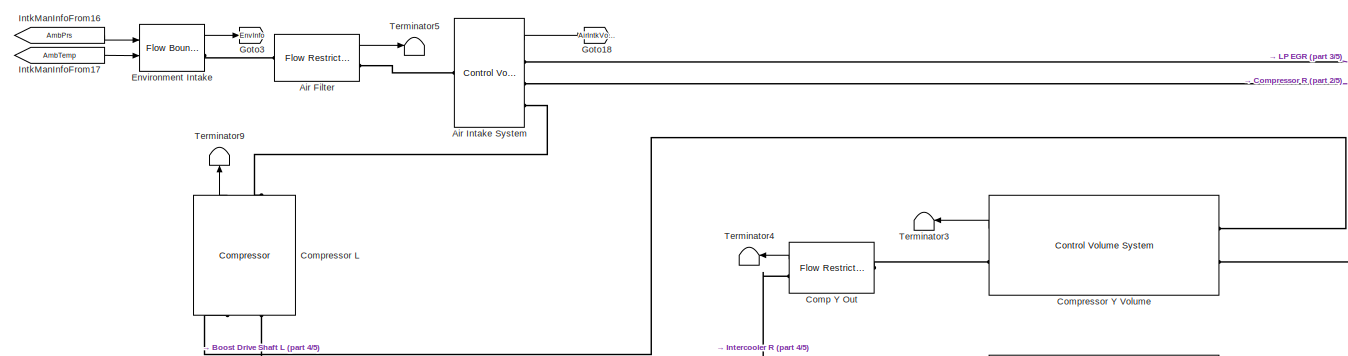
[diagram: root canvas - part 1/5, top left region]
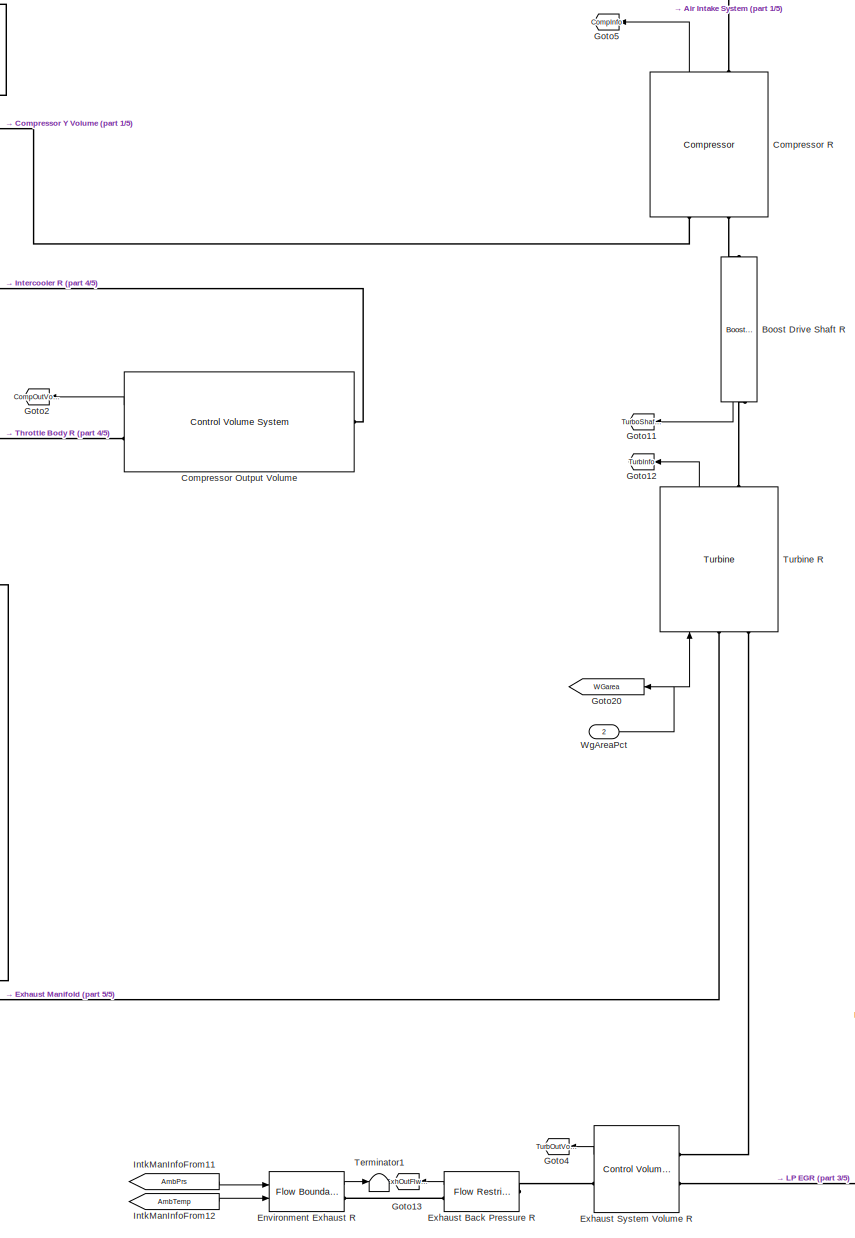
[diagram: root canvas - part 2/5, center side, full height]
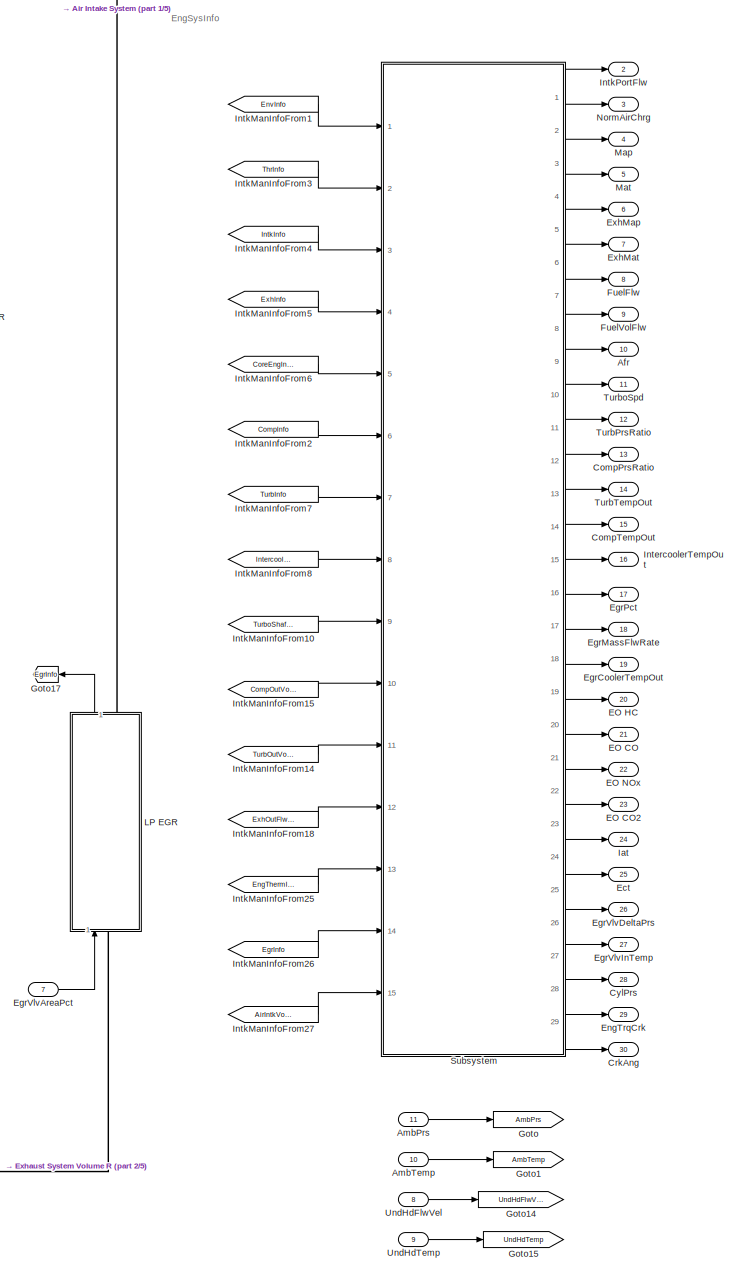
[diagram: root canvas - part 3/5, right side, full height]
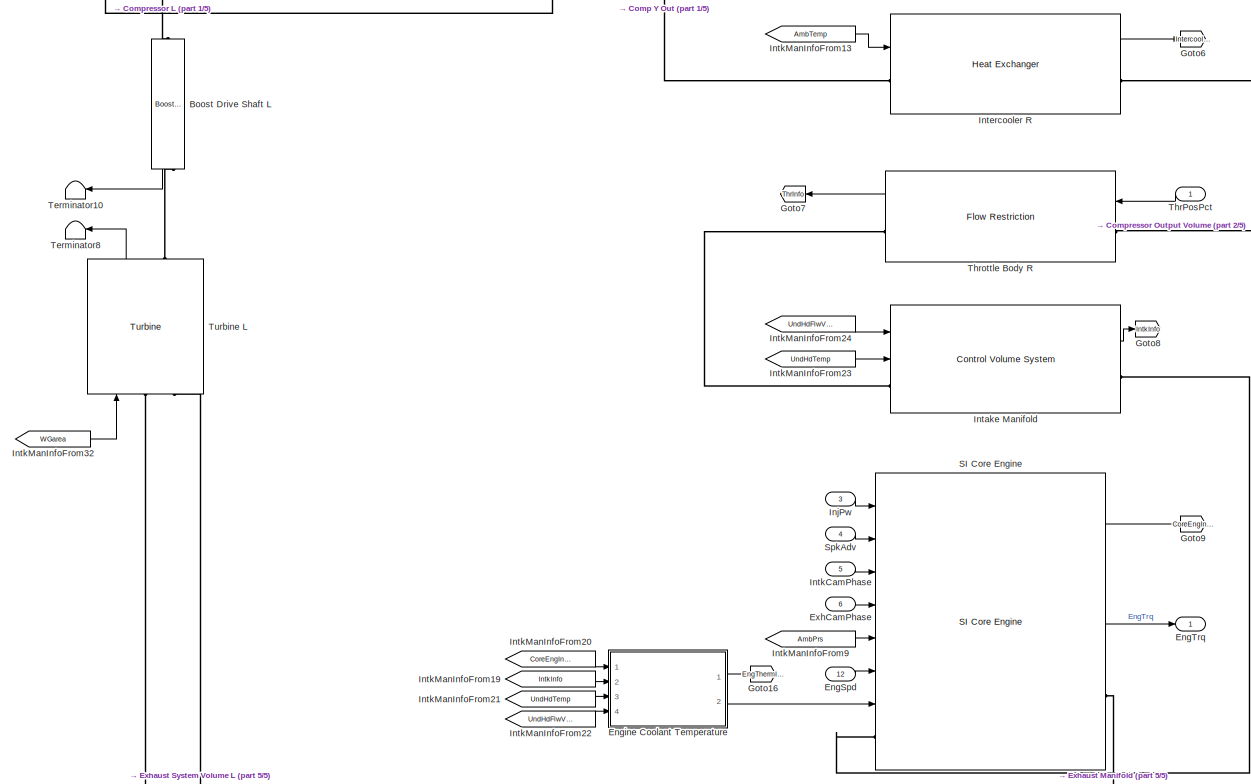
[diagram: root canvas - part 4/5, middle left region]
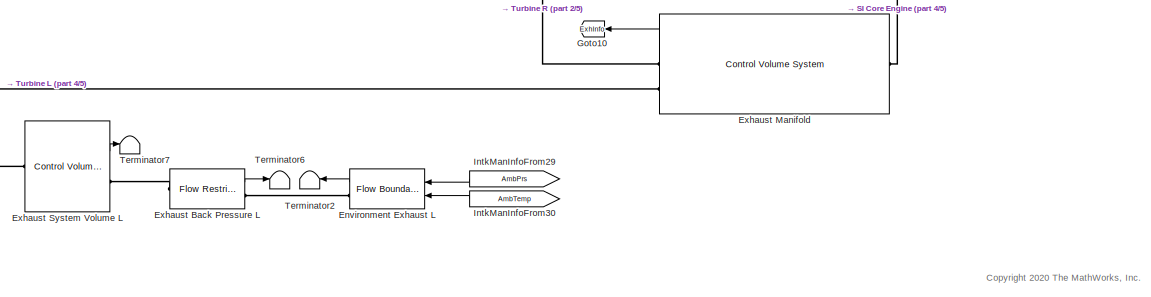
[diagram: root canvas - part 5/5, bottom left region]
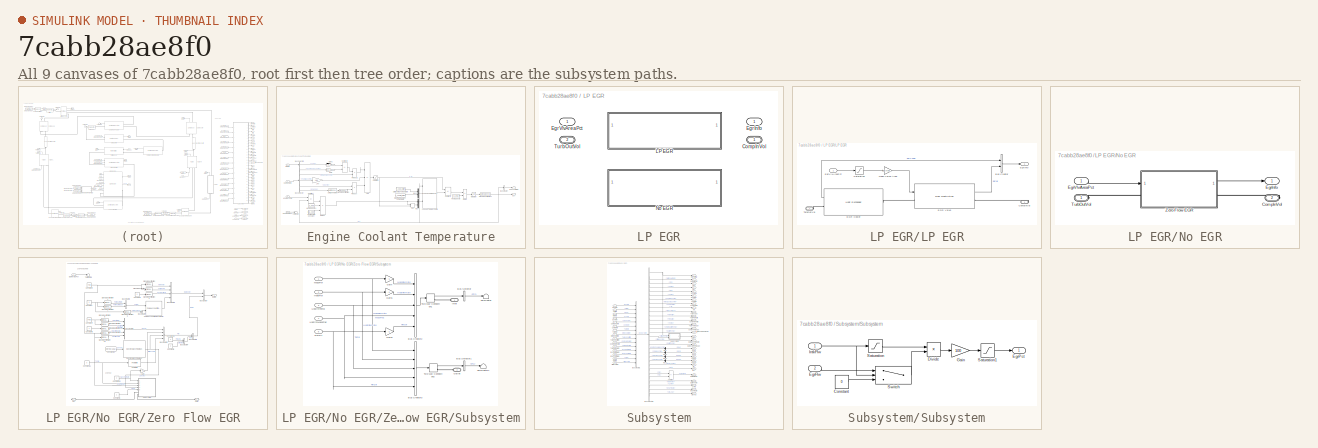
[diagram: thumbnail index - all 9 canvases of the model, root first then tree order]
MODEL slx_7cabb28ae8f0
KIND model
CONFIG AbsTol = auto
CONFIG EnableMultiTasking = on
CONFIG MaxStep = auto
CONFIG MinStep = auto
CONFIG RelTol = 1e-3
CONFIG SampleTimeConstraint = Unconstrained
CONFIG SolverName = VariableStepAuto
CONFIG StartTime = 0.0
CONFIG StopTime = inf
WORKSPACE source: mxarray member
WORKSPACE AirFilterArea = 0.000962112555673
WORKSPACE AirIntakeVol = 0.0136999958459
WORKSPACE C_eng = 40000
WORKSPACE CompEff = [0.2 0.2 0.2 0.2 0.2 0.2 0.2 0.2 0.2 0.2 0.2 0.2 ... (5000 elements, 50x100)]
WORKSPACE CompMassFlwRate = [2.77757375222e-05 0.00278244353445 0.00553861239625 0.00829583273895 0.011053628394 0.013811495305 0.016568900165 0.0193252789928 0.0220800356457 0.0248325402661 0.02758212766 0.0303280956049 ... (5000 elements, 50x100)]
WORKSPACE CompPrsRatioBreakPoints = [1 1.02808080808 1.05616161616 1.08424242424 1.11232323232 1.1404040404 1.16848484848 1.19656565657 1.22464646465 1.25272727273 1.28080808081 1.30888888889 ... (100 elements, 1x100)]
WORKSPACE CompRefPrs = 101325
WORKSPACE CompRefTemp = 300
WORKSPACE CompSpdBreakPoints = [6.29960709172 630.860220755 1255.42083442 1879.98144808 2504.54206174 3129.10267541 3753.66328907 4378.22390273 5002.78451639 5627.34513006 6251.90574372 6876.46635738 ... (50 elements, 1x50)]
WORKSPACE CoolantTemp = 310
WORKSPACE Cps = 2
WORKSPACE EgrArea = 0.000314159201853
WORKSPACE EgrCoolantTemp = 360
WORKSPACE EgrEffectiveness = 0.8
WORKSPACE ExhSysArea = 0.00138544208017
WORKSPACE ExhSysVol = 0.00439999866583
WORKSPACE IcEffectiveness = 0.7
WORKSPACE LHV = 47300000
WORKSPACE NCyl = 4
WORKSPACE Pstd = 101325
WORKSPACE Rair = 287
WORKSPACE Rexh = 297
WORKSPACE Sinj = 6.45161094696
WORKSPACE T_cool_start = 355
WORKSPACE T_coolnt_init = 355
WORKSPACE T_coolnt_max = 375
WORKSPACE ThrAngToC = [0 90 0.001 0.735]
WORKSPACE ThrDiam = 50
WORKSPACE Tstd = 293.15
WORKSPACE TurbEff = [0.1 0.1 0.1 0.1 0.1 0.1 0.1 0.1 0.1 0.1 0.1 0.1 ... (3600 elements, 60x60)]
WORKSPACE TurbMassFlwRate = [0 0 0 0 0 0 0 0 0 0 0 0 ... (3600 elements, 60x60)]
WORKSPACE TurbPrsRatioBreakPoints = [1 1.0066198 1.0187236 1.0343974 1.0529583 1.0740113 1.0972904 1.1226 1.1497884 1.178734 1.2093357 1.2415084 ... (60 elements, 1x60)]
WORKSPACE TurbRefPres = 101325
WORKSPACE TurbRefTemp = 300
WORKSPACE TurbSpdBreakPoints = [0 298.243785141 596.487570282 894.731378276 1192.97518627 1491.21894856 1789.46275655 2087.70651884 2385.95014401 2684.19422624 2982.43785141 3280.68193363 ... (60 elements, 60x1)]
WORKSPACE TurboInertia = 9.76438242573e-06
WORKSPACE Vd = 0.00149999954517
WORKSPACE Vexh = 0.00159999951485
WORKSPACE Vint = 0.00286
WORKSPACE VolCompOut = 0.0013
WORKSPACE WgArea = 0.000197907819971
WORKSPACE afr_stoich = 14.6
WORKSPACE cp_air = 1005
WORKSPACE cp_exh = 1005
WORKSPACE f_CO2_frac = [0.190124640361 0.190124640361 0.197310430134 0.198841052192 0.19976911847 0.200569885042 0.199664821109 0.20034918367 0.20035007673 0.20035007673 0.20035007673 0.20035007673 ... (240 elements, 16x15)]
WORKSPACE f_CO_frac = [6.86026635502e-05 6.86026635502e-05 0.000137130178455 0.000177313004818 0.000153545722458 0.000286109103754 0.00065603982686 0.00012726330728 0.000129286672759 0.000129286672759 0.000129286672759 0.000129286672759 ... (240 elements, 16x15)]
WORKSPACE f_HC_frac = [0.00443209119576 0.00443209119576 0.00220684816441 0.00166684424867 0.00138421884093 0.0010658858934 0.00112857643245 0.00117703080332 0.00117597584116 0.00117597584116 0.00117597584116 0.00117597584116 ... (240 elements, 16x15)]
WORKSPACE f_NOx_frac = [4.08881357131e-05 4.08881357131e-05 0.00012346903723 0.000189339284589 0.00026637780763 0.000608287545555 0.00102018770254 0.00131576653087 0.00131610412986 0.00131610412986 0.00131610412986 0.00131610412986 ... (240 elements, 16x15)]
WORKSPACE f_crk_ang_bpt = [0 1 2 3 4 5 6 7 8 9 10 11 ... (720 elements, 1x720)]
WORKSPACE f_crk_btq = [0.136728721931 -2.50368817174 -4.15583324206 -3.64508296948 -4.5820103164 -4.71681119804 -6.43447735061 -6.70214242217 -7.29494589751 -7.88108525448 -8.24127679187 -8.98042757721 ... (552960 elements, 16x16x720x3)]
WORKSPACE f_crk_firing_bpt = [-1 0 1]
WORKSPACE f_crk_l_bpt = [0.1 0.2 0.28571 0.37143 0.45714 0.54286 0.62857 0.71429 0.8 0.88571 0.97143 1.0571 ... (16 elements, 1x16)]
WORKSPACE f_crk_n_bpt = [0 750 1053.5714 1357.1429 1660.7143 1964.2857 2267.8571 2571.4286 2875 3178.5714 3482.1429 3785.7143 ... (16 elements, 1x16)]
WORKSPACE f_crk_prs = [1689386.00086 567016.963015 540209.303244 497904.202445 466363.587812 456523.178927 440164.584707 444578.714223 442481.328634 434195.101203 412451.899051 396874.340578 ... (552960 elements, 16x16x720x3)]
WORKSPACE f_crk_tdc_ang = [0 540 180 360]
WORKSPACE f_del_sa_bpt = [0 0.75 1.5 2.25 3 3.75 4.5 5.25 6 6.75 7.5 8.25 ... (65 elements, 1x65)]
WORKSPACE f_exhfrac_n_bpt = [750.000075805 1053.57153506 1357.14299431 1660.71445357 1964.28591282 2267.85737208 2571.42883133 2875.00029059 3178.57174984 3482.1432091 3785.71466835 4089.2861276 ... (15 elements, 1x15)]
WORKSPACE f_exhfrac_trq_bpt = [0 14.9999954517 26.4285634149 37.8571313781 49.2856993413 60.7142673044 72.1428352676 83.5714032308 94.999971194 106.428539157 117.85710712 129.285675084 ... (16 elements, 1x16)]
WORKSPACE f_fric_temp_bpt = [274 276 278 280 282 284 286 288 290 292 294 296 ... (54 elements, 1x54)]
WORKSPACE f_fric_temp_mod = [3.96 3.22 2.56 2.26 2.11 2 1.9 1.83 1.76 1.7 1.65 1.6 ... (54 elements, 1x54)]
WORKSPACE f_m_lam = [0.94128 0.95565 0.97001 0.98437 0.99008 1.0004 0.97527 0.9549 0.92612 0.89735 0]
WORKSPACE f_m_lam_bpt = [0.65 0.7 0.75 0.8 0.85 0.9 0.95 1 1.05 1.1 2]
WORKSPACE f_m_sa = [1.0019 0.9988 0.9953 0.99173 0.98811 0.98441 0.98065 0.97682 0.97293 0.96897 0.96493 0.96083 ... (65 elements, 1x65)]
WORKSPACE f_mdot_air_corr = [1.02156051768 1.00597426471 0.989411677851 1.0033499089 0.984591437857 0.988509040623 1.0326198627 1.02765527362 1.0134784519 0.998280021213 0.981755128787 0.967218261288 ... (400 elements, 20x20)]
WORKSPACE f_mdot_air_corr_ld_bpt = [0.223381333333 0.285105122807 0.346828912281 0.408552701754 0.470276491228 0.532000280702 0.593724070175 0.655447859649 0.717171649123 0.778895438596 0.84061922807 0.902343017544 ... (20 elements, 1x20)]
WORKSPACE f_mdot_air_n_bpt = [750.000075805 973.684298414 1197.36852102 1421.05274363 1644.73696624 1868.42128885 2092.10551146 2315.78973407 2539.47395667 2763.15817928 2986.84240189 3210.5266245 ... (20 elements, 1x20)]
WORKSPACE f_mdot_intk = [0 0 0 0 0 0 0 0 0 0 0 0 ... (400 elements, 20x20)]
WORKSPACE f_mdot_intk_ecp_bpt = [0 2.6316 5.2632 7.8947 10.5263 13.1579 15.7895 18.4211 21.0526 23.6842 26.3158 28.9474 ... (20 elements, 1x20)]
WORKSPACE f_mdot_trpd_bpt = [0 5.78949882967 11.5788976594 17.368396489 23.1578953187 28.9473941484 34.736792978 40.5262918077 46.3157906374 52.1052894671 57.8946882967 63.6841871264 ... (20 elements, 1x20)]
WORKSPACE f_nv = [0.64175366561 0.641419295169 0.640125365558 0.638690556197 0.644169906538 0.669178791311 0.731659452876 0.750078238889 0.750078238889 0.750078238889 0.750078238889 0.750078238889 ... (225 elements, 15x15)]
WORKSPACE f_nv_n_bpt = [750.000075805 1053.57153506 1357.14299431 1660.71445357 1964.28591282 2267.85737208 2571.42883133 2875.00029059 3178.57174984 3482.1432091 3785.71466835 4089.2861276 ... (15 elements, 1x15)]
WORKSPACE f_nv_prs_bpt = [31 40.6428571429 50.2857142857 59.9285714286 69.5714285714 79.2142857143 88.8571428571 98.5 108.142857143 117.785714286 127.428571429 137.071428571 ... (15 elements, 1x15)]
WORKSPACE f_sa_opt = [9.05 9.05 16.4373253582 15.3405265461 13.6074880273 9.83352189562 3.89388784387 2.22044604925e-16 2.22044604925e-16 2.22044604925e-16 2.22044604925e-16 2.22044604925e-16 ... (256 elements, 16x16)]
WORKSPACE f_t_exh = [739.936218766 750.584766028 772.770773797 791.235245621 803.106549716 885.862998064 920.498479307 920.498479307 920.498479307 920.498479307 920.498479307 920.498479307 ... (225 elements, 15x15)]
WORKSPACE f_t_exh_l_bpt = [0.2 0.275 0.35 0.425 0.5 0.575 0.65 0.725 0.8 0.875 0.95 1.025 ... (15 elements, 1x15)]
WORKSPACE f_t_exh_n_bpt = [750.000075805 1053.57153506 1357.14299431 1660.71445357 1964.28591282 2267.85737208 2571.42883133 2875.00029059 3178.57174984 3482.1432091 3785.71466835 4089.2861276 ... (15 elements, 1x15)]
WORKSPACE f_tm_corr = [0.839360054391 0.833393271885 0.82629554201 0.818442814437 0.811524387436 0.809164184856 0.814606352881 0.826887956871 0.842304598924 0.856886829014 0.869487025783 0.880530414174 ... (400 elements, 20x20)]
WORKSPACE f_tm_corr_n_bpt = [750.000075805 973.684298414 1197.36852102 1421.05274363 1644.73696624 1868.42128885 2092.10551146 2315.78973407 2539.47395667 2763.15817928 2986.84240189 3210.5266245 ... (20 elements, 1x20)]
WORKSPACE f_tm_corr_nd_bpt = [0.3 0.38947 0.47895 0.56842 0.65789 0.74737 0.83684 0.92632 1.0158 1.1053 1.1947 1.2842 ... (20 elements, 1x20)]
WORKSPACE f_tq_fric = [0 0 0 0 0 0 0 0 0 0 0 0 ... (256 elements, 16x16)]
WORKSPACE f_tq_inr = [25.8507921615 25.8507921615 25.8507921615 25.8507921615 25.8507921615 25.8507921615 25.8507921615 25.8507921615 25.8507921615 25.8507921615 25.8507921615 25.8507921615 ... (256 elements, 16x16)]
WORKSPACE f_tq_inr_l_bpt = [0.1 0.2 0.28571 0.37143 0.45714 0.54286 0.62857 0.71429 0.8 0.88571 0.97143 1.0571 ... (16 elements, 1x16)]
WORKSPACE f_tq_inr_n_bpt = [0 750.000075805 1053.57150649 1357.14303717 1660.71446785 1964.28589854 2267.85732922 2571.4288599 2875.00029059 3178.57172127 3482.14325195 3785.71468264 ... (16 elements, 1x16)]
WORKSPACE f_tq_nl = [0 15.0012087957 26.4298253782 37.8556541726 49.2846633514 60.7113794703 72.3451749836 77.4596286756 78.5324295947 78.5324295947 78.5324295947 78.5324295947 ... (256 elements, 16x16)]
WORKSPACE f_tq_nl_l_bpt = [0 0.2 0.275 0.35 0.425 0.5 0.575 0.65 0.725 0.8 0.875 0.95 ... (16 elements, 1x16)]
WORKSPACE f_tq_nl_n_bpt = [0 750.000075805 1053.57153506 1357.14299431 1660.71445357 1964.28591282 2267.85737208 2571.42883133 2875.00029059 3178.57174984 3482.1432091 3785.71466835 ... (16 elements, 1x16)]
WORKSPACE f_tq_pump = [0 0 0 0 0 0 0 0 0 0 0 0 ... (256 elements, 16x16)]
WORKSPACE f_vivc = [0.377159885637 0.381639884279 0.386109882923 0.390329881644 0.394279880446 0.397949879333 0.401319878311 0.404409877374 0.407189876531 0.409669875779 0.411839875121 0.413719874551 ... (20 elements, 1x20)]
WORKSPACE f_vivc_icp_bpt = [0 2.6316 5.2632 7.8947 10.5263 13.1579 15.7895 18.4211 21.0526 23.6842 26.3158 28.9474 ... (20 elements, 1x20)]
WORKSPACE mappedTbls: object (value not decoded)
WORKSPACE tau_cool = 3000
BLOCK [Outport] Afr
  Port = 10
  VectorParamsAs1DForOutWhenUnconnected = off
BLOCK [Reference] Air Filter  REF=autolibfundflw/Flow Restriction
  Ports = [0, 1, 0, 0, 0, 1, 1]
  SourceBlock = autolibfundflw/Flow Restriction
  SourceProductBaseCode = PW
  SourceType = Flow Restriction
BLOCK [Reference] Air Intake System  REF=autolibfundflw/Control Volume System
  Ports = [0, 1, 0, 0, 0, 1, 3]
  SourceBlock = autolibfundflw/Control Volume System
  SourceProductBaseCode = PW
  SourceType = Control Volume System
BLOCK [Inport] AmbPrs
  Port = 11
BLOCK [Inport] AmbTemp
  Port = 10
BLOCK [Reference] Boost Drive Shaft L  REF=autolibboost/Boost Drive Shaft
  NameLocation = left
  Ports = [0, 1, 0, 0, 0, 1, 1]
  SourceBlock = autolibboost/Boost Drive Shaft
  SourceProductBaseCode = PW
  SourceType = Boost Drive Shaft
BLOCK [Reference] Boost Drive Shaft R  REF=autolibboost/Boost Drive Shaft
  NameLocation = right
  Ports = [0, 1, 0, 0, 0, 1, 1]
  SourceBlock = autolibboost/Boost Drive Shaft
  SourceProductBaseCode = PW
  SourceType = Boost Drive Shaft
BLOCK [Reference] Comp Y Out  REF=autolibfundflw/Flow Restriction
  Ports = [0, 1, 0, 0, 0, 1, 1]
  SourceBlock = autolibfundflw/Flow Restriction
  SourceProductBaseCode = PW
  SourceType = Flow Restriction
BLOCK [Outport] CompPrsRatio
  Port = 13
  VectorParamsAs1DForOutWhenUnconnected = off
BLOCK [Outport] CompTempOut
  Port = 15
  VectorParamsAs1DForOutWhenUnconnected = off
BLOCK [Reference] Compressor L  REF=autolibboost/Compressor
  NameLocation = right
  Ports = [0, 1, 0, 0, 0, 2, 1]
  SourceBlock = autolibboost/Compressor
  SourceProductBaseCode = PW
  SourceType = Compressor
BLOCK [Reference] Compressor Output Volume  REF=autolibfundflw/Control Volume System
  Ports = [0, 1, 0, 0, 0, 1, 1]
  SourceBlock = autolibfundflw/Control Volume System
  SourceProductBaseCode = PW
  SourceType = Control Volume System
BLOCK [Reference] Compressor R  REF=autolibboost/Compressor
  NameLocation = left
  Ports = [0, 1, 0, 0, 0, 2, 1]
  SourceBlock = autolibboost/Compressor
  SourceProductBaseCode = PW
  SourceType = Compressor
BLOCK [Reference] Compressor Y Volume  REF=autolibfundflw/Control Volume System
  Ports = [0, 1, 0, 0, 0, 2, 1]
  SourceBlock = autolibfundflw/Control Volume System
  SourceProductBaseCode = PW
  SourceType = Control Volume System
BLOCK [Outport] CrkAng
  Port = 30
  VectorParamsAs1DForOutWhenUnconnected = off
BLOCK [Outport] CylPrs
  Port = 28
  VectorParamsAs1DForOutWhenUnconnected = off
BLOCK [Outport] EO CO
  Port = 21
  VectorParamsAs1DForOutWhenUnconnected = off
BLOCK [Outport] EO CO2
  Port = 23
  VectorParamsAs1DForOutWhenUnconnected = off
BLOCK [Outport] EO HC
  Port = 20
  VectorParamsAs1DForOutWhenUnconnected = off
BLOCK [Outport] EO NOx
  Port = 22
  VectorParamsAs1DForOutWhenUnconnected = off
BLOCK [Outport] Ect
  Port = 25
  VectorParamsAs1DForOutWhenUnconnected = off
BLOCK [Outport] EgrCoolerTempOut
  Port = 19
  VectorParamsAs1DForOutWhenUnconnected = off
BLOCK [Outport] EgrMassFlwRate
  Port = 18
  VectorParamsAs1DForOutWhenUnconnected = off
BLOCK [Outport] EgrPct
  Port = 17
  VectorParamsAs1DForOutWhenUnconnected = off
BLOCK [Inport] EgrVlvAreaPct
  Port = 7
BLOCK [Outport] EgrVlvDeltaPrs
  Port = 26
  VectorParamsAs1DForOutWhenUnconnected = off
BLOCK [Outport] EgrVlvInTemp
  Port = 27
  VectorParamsAs1DForOutWhenUnconnected = off
BLOCK [Inport] EngSpd
  Port = 12
BLOCK [Outport] EngTrq
  VectorParamsAs1DForOutWhenUnconnected = off
BLOCK [Outport] EngTrqCrk
  Port = 29
  VectorParamsAs1DForOutWhenUnconnected = off
BLOCK [SubSystem] Engine Coolant Temperature
  Ports = [4, 2]
  RequestExecContextInheritance = off
BLOCK [Sum] Engine Coolant Temperature/Add
  IconShape = rectangular
  Inputs = ++-
  Ports = [3, 1]
BLOCK [BusCreator] Engine Coolant Temperature/Bus Creator
  DisplayOption = bar
  InheritFromInputs = on
  Inputs = 1
  Ports = [1, 1]
BLOCK [BusSelector] Engine Coolant Temperature/Bus Selector
  OutputSignals = ExhManGasTemp,IntkGasMassFlw,FuelMassFlw,EngTrq,EngSpd
  Ports = [1, 5]
BLOCK [BusSelector] Engine Coolant Temperature/Bus Selector1
  OutputSignals = Vol.Temp
  Ports = [1, 1]
BLOCK [Constant] Engine Coolant Temperature/Cooling Time Constant
  Value = tau_cool
BLOCK [Inport] Engine Coolant Temperature/CoreEngInfo
BLOCK [Product] Engine Coolant Temperature/Divide
  Inputs = */
  Ports = [2, 1]
BLOCK [Product] Engine Coolant Temperature/Divide1
  Inputs = **/
  Ports = [3, 1]
BLOCK [Outport] Engine Coolant Temperature/Ect
  Port = 2
  Unit = K
  VectorParamsAs1DForOutWhenUnconnected = off
BLOCK [Outport] Engine Coolant Temperature/EngThermInfo
  Unit = K
  VectorParamsAs1DForOutWhenUnconnected = off
BLOCK [Gain] Engine Coolant Temperature/Gain
  Gain = cp_exh
BLOCK [Gain] Engine Coolant Temperature/Gain1
  Gain = cp_air
BLOCK [Constant] Engine Coolant Temperature/Heat Capacity
  Value = C_eng
BLOCK [Constant] Engine Coolant Temperature/Heat Capacity1
  Value = C_eng
BLOCK [Integrator] Engine Coolant Temperature/Integrator
  InitialCondition = T_coolnt_init
  LimitOutput = on
  LowerSaturationLimit = 0
  Ports = [1, 1]
  UpperSaturationLimit = T_coolnt_max
  ZeroCross = off
BLOCK [Inport] Engine Coolant Temperature/IntkInfo
  Port = 2
BLOCK [Gain] Engine Coolant Temperature/LHV
  Gain = LHV
BLOCK [Reference] Engine Coolant Temperature/Lookup Table Dynamic  REF=simulink/Lookup
Tables/Lookup
Table
Dynamic
  Ports = [3, 1]
  SourceBlock = simulink/Lookup\nTables/Lookup\nTable\nDynamic
  SourceProductBaseCode = SL
  SourceType = Lookup Table Dynamic
BLOCK [MinMax] Engine Coolant Temperature/Max
  Function = max
  Inputs = 2
  Ports = [2, 1]
  ZeroCross = off
BLOCK [Constant] Engine Coolant Temperature/Maximum Coolant Temperature
  Value = T_coolnt_max
BLOCK [Mux] Engine Coolant Temperature/Mux
  DisplayOption = bar
  Inputs = 2
  Ports = [2, 1]
BLOCK [Mux] Engine Coolant Temperature/Mux1
  DisplayOption = bar
  Inputs = 2
  Ports = [2, 1]
BLOCK [Product] Engine Coolant Temperature/Product
  Ports = [2, 1]
BLOCK [Product] Engine Coolant Temperature/Product1
  Ports = [2, 1]
BLOCK [Saturate] Engine Coolant Temperature/Saturation
  LowerLimit = 0
  UpperLimit = Inf
BLOCK [SignalSpecification] Engine Coolant Temperature/Signal Specification
  Unit = rad/s
BLOCK [SignalSpecification] Engine Coolant Temperature/Signal Specification1
  Unit = K
BLOCK [Constant] Engine Coolant Temperature/Start Cooling Temperature
  Value = T_cool_start
BLOCK [Sum] Engine Coolant Temperature/Subtract
  IconShape = rectangular
  Inputs = -+
  Ports = [2, 1]
BLOCK [Sum] Engine Coolant Temperature/Subtract1
  IconShape = rectangular
  Inputs = +-
  Ports = [2, 1]
BLOCK [Sum] Engine Coolant Temperature/Subtract2
  IconShape = rectangular
  Inputs = +-
  Ports = [2, 1]
BLOCK [Terminator] Engine Coolant Temperature/Terminator
BLOCK [Inport] Engine Coolant Temperature/UndHdFlwVel
  Port = 4
BLOCK [Inport] Engine Coolant Temperature/UndHdTemp
  Port = 3
BLOCK [UnitConversion] Engine Coolant Temperature/Unit Conversion
BLOCK [Reference] Environment Exhaust L  REF=autolibfundflw/Flow Boundary
  Ports = [2, 1, 0, 0, 0, 0, 1]
  SourceBlock = autolibfundflw/Flow Boundary
  SourceProductBaseCode = PW
  SourceType = Flow Boundary
BLOCK [Reference] Environment Exhaust R  REF=autolibfundflw/Flow Boundary
  Ports = [2, 1, 0, 0, 0, 0, 1]
  SourceBlock = autolibfundflw/Flow Boundary
  SourceProductBaseCode = PW
  SourceType = Flow Boundary
BLOCK [Reference] Environment Intake  REF=autolibfundflw/Flow Boundary
  Ports = [2, 1, 0, 0, 0, 0, 1]
  SourceBlock = autolibfundflw/Flow Boundary
  SourceProductBaseCode = PW
  SourceType = Flow Boundary
BLOCK [Inport] ExhCamPhase
  Port = 6
BLOCK [Outport] ExhMap
  Port = 6
  VectorParamsAs1DForOutWhenUnconnected = off
BLOCK [Outport] ExhMat
  Port = 7
  VectorParamsAs1DForOutWhenUnconnected = off
BLOCK [Reference] Exhaust Back Pressure L  REF=autolibfundflw/Flow Restriction
  Ports = [0, 1, 0, 0, 0, 1, 1]
  SourceBlock = autolibfundflw/Flow Restriction
  SourceProductBaseCode = PW
  SourceType = Flow Restriction
BLOCK [Reference] Exhaust Back Pressure R  REF=autolibfundflw/Flow Restriction
  Ports = [0, 1, 0, 0, 0, 1, 1]
  SourceBlock = autolibfundflw/Flow Restriction
  SourceProductBaseCode = PW
  SourceType = Flow Restriction
BLOCK [Reference] Exhaust Manifold  REF=autolibfundflw/Control Volume System
  Ports = [0, 1, 0, 0, 0, 1, 2]
  SourceBlock = autolibfundflw/Control Volume System
  SourceProductBaseCode = PW
  SourceType = Control Volume System
BLOCK [Reference] Exhaust System Volume L  REF=autolibfundflw/Control Volume System
  Ports = [0, 1, 0, 0, 0, 1, 1]
  SourceBlock = autolibfundflw/Control Volume System
  SourceProductBaseCode = PW
  SourceType = Control Volume System
BLOCK [Reference] Exhaust System Volume R  REF=autolibfundflw/Control Volume System
  Ports = [0, 1, 0, 0, 0, 2, 1]
  SourceBlock = autolibfundflw/Control Volume System
  SourceProductBaseCode = PW
  SourceType = Control Volume System
BLOCK [Outport] FuelFlw
  Port = 8
  VectorParamsAs1DForOutWhenUnconnected = off
BLOCK [Outport] FuelVolFlw
  Port = 9
  VectorParamsAs1DForOutWhenUnconnected = off
BLOCK [Goto] Goto
  GotoTag = AmbPrs
BLOCK [Goto] Goto1
  GotoTag = AmbTemp
BLOCK [Goto] Goto10
  GotoTag = ExhInfo
BLOCK [Goto] Goto11
  GotoTag = TurboShaftInfo
BLOCK [Goto] Goto12
  GotoTag = TurbInfo
  NameLocation = top
BLOCK [Goto] Goto13
  GotoTag = ExhOutFlwInfo
  NameLocation = top
BLOCK [Goto] Goto14
  GotoTag = UndHdFlwVel
BLOCK [Goto] Goto15
  GotoTag = UndHdTemp
BLOCK [Goto] Goto16
  GotoTag = EngThermInfo
BLOCK [Goto] Goto17
  GotoTag = EgrInfo
BLOCK [Goto] Goto18
  GotoTag = AirIntkVolInfo
BLOCK [Goto] Goto2
  GotoTag = CompOutVolInfo
BLOCK [Goto] Goto20
  GotoTag = WGarea
BLOCK [Goto] Goto3
  GotoTag = EnvInfo
BLOCK [Goto] Goto4
  GotoTag = TurbOutVolInfo
  NameLocation = top
BLOCK [Goto] Goto5
  GotoTag = CompInfo
BLOCK [Goto] Goto6
  GotoTag = IntercoolerInfo
BLOCK [Goto] Goto7
  GotoTag = ThrInfo
BLOCK [Goto] Goto8
  GotoTag = IntkInfo
BLOCK [Goto] Goto9
  GotoTag = CoreEngInfo
BLOCK [Outport] Iat
  Port = 24
  VectorParamsAs1DForOutWhenUnconnected = off
BLOCK [Inport] InjPw
  Port = 3
BLOCK [Reference] Intake Manifold  REF=autolibfundflw/Control Volume System
  Ports = [2, 1, 0, 0, 0, 1, 1]
  SourceBlock = autolibfundflw/Control Volume System
  SourceProductBaseCode = PW
  SourceType = Control Volume System
BLOCK [Reference] Intercooler R  REF=autolibfundflw/Heat Exchanger
  Ports = [1, 1, 0, 0, 0, 1, 1]
  SourceBlock = autolibfundflw/Heat Exchanger
  SourceProductBaseCode = PW
  SourceType = Heat Exchanger
BLOCK [Outport] IntercoolerTempOut
  Port = 16
  VectorParamsAs1DForOutWhenUnconnected = off
BLOCK [Inport] IntkCamPhase
  Port = 5
BLOCK [From] IntkManInfoFrom1
  GotoTag = EnvInfo
BLOCK [From] IntkManInfoFrom10
  GotoTag = TurboShaftInfo
BLOCK [From] IntkManInfoFrom11
  GotoTag = AmbPrs
BLOCK [From] IntkManInfoFrom12
  GotoTag = AmbTemp
BLOCK [From] IntkManInfoFrom13
  GotoTag = AmbTemp
BLOCK [From] IntkManInfoFrom14
  GotoTag = TurbOutVolInfo
BLOCK [From] IntkManInfoFrom15
  GotoTag = CompOutVolInfo
BLOCK [From] IntkManInfoFrom16
  GotoTag = AmbPrs
BLOCK [From] IntkManInfoFrom17
  GotoTag = AmbTemp
BLOCK [From] IntkManInfoFrom18
  GotoTag = ExhOutFlwInfo
BLOCK [From] IntkManInfoFrom19
  GotoTag = IntkInfo
BLOCK [From] IntkManInfoFrom2
  GotoTag = CompInfo
BLOCK [From] IntkManInfoFrom20
  GotoTag = CoreEngInfo
BLOCK [From] IntkManInfoFrom21
  GotoTag = UndHdTemp
BLOCK [From] IntkManInfoFrom22
  GotoTag = UndHdFlwVel
BLOCK [From] IntkManInfoFrom23
  GotoTag = UndHdTemp
BLOCK [From] IntkManInfoFrom24
  GotoTag = UndHdFlwVel
BLOCK [From] IntkManInfoFrom25
  GotoTag = EngThermInfo
BLOCK [From] IntkManInfoFrom26
  GotoTag = EgrInfo
BLOCK [From] IntkManInfoFrom27
  GotoTag = AirIntkVolInfo
BLOCK [From] IntkManInfoFrom29
  GotoTag = AmbPrs
BLOCK [From] IntkManInfoFrom3
  GotoTag = ThrInfo
BLOCK [From] IntkManInfoFrom30
  GotoTag = AmbTemp
BLOCK [From] IntkManInfoFrom32
  GotoTag = WGarea
BLOCK [From] IntkManInfoFrom4
  GotoTag = IntkInfo
BLOCK [From] IntkManInfoFrom5
  GotoTag = ExhInfo
BLOCK [From] IntkManInfoFrom6
  GotoTag = CoreEngInfo
BLOCK [From] IntkManInfoFrom7
  GotoTag = TurbInfo
BLOCK [From] IntkManInfoFrom8
  GotoTag = IntercoolerInfo
BLOCK [From] IntkManInfoFrom9
  GotoTag = AmbPrs
BLOCK [Outport] IntkPortFlw
  Port = 2
  VectorParamsAs1DForOutWhenUnconnected = off
BLOCK [SubSystem] LP EGR
  LabelModeActiveChoice = LpEGR
  Ports = [1, 1, 0, 0, 0, 1, 1]
  RequestExecContextInheritance = off
  Variant = on
  VariantControl = Choice
  VariantControlMode = label
BLOCK [PMIOPort] LP EGR/CompInVol
  Side = Right
BLOCK [Outport] LP EGR/EgrInfo
BLOCK [Inport] LP EGR/EgrVlvAreaPct
BLOCK [SubSystem] LP EGR/LP EGR
  NameLocation = top
  Ports = [1, 1, 0, 0, 0, 1, 1]
  RequestExecContextInheritance = off
  VariantControl = LpEGR
BLOCK [BusCreator] LP EGR/LP EGR/Bus Creator
  DisplayOption = bar
  InheritFromInputs = on
  Inputs = 2
  Ports = [2, 1]
BLOCK [PMIOPort] LP EGR/LP EGR/CompInVol
  Side = Right
BLOCK [Reference] LP EGR/LP EGR/EGR Cooler  REF=autolibfundflw/Heat Exchanger
  Ports = [0, 1, 0, 0, 0, 1, 1]
  SourceBlock = autolibfundflw/Heat Exchanger
  SourceProductBaseCode = PW
  SourceType = Heat Exchanger
BLOCK [Reference] LP EGR/LP EGR/EGR Valve  REF=autolibfundflw/Flow Restriction
  Ports = [1, 1, 0, 0, 0, 1, 1]
  SourceBlock = autolibfundflw/Flow Restriction
  SourceProductBaseCode = PW
  SourceType = Flow Restriction
BLOCK [Outport] LP EGR/LP EGR/EgrInfo
  VectorParamsAs1DForOutWhenUnconnected = off
BLOCK [Inport] LP EGR/LP EGR/EgrVlvAreaPct
BLOCK [Gain] LP EGR/LP EGR/Open Valve Area
  Gain = EgrArea/100
BLOCK [Saturate] LP EGR/LP EGR/Saturation
  LowerLimit = 0
  UpperLimit = 100
BLOCK [PMIOPort] LP EGR/LP EGR/TurbOutVol
  Port = 2
  Side = Left
BLOCK [SubSystem] LP EGR/No EGR
  NameLocation = top
  Ports = [1, 1, 0, 0, 0, 1, 1]
  RequestExecContextInheritance = off
  VariantControl = NoEGR
BLOCK [PMIOPort] LP EGR/No EGR/CompInVol
  Port = 2
  Side = Right
BLOCK [Outport] LP EGR/No EGR/EgrInfo
  VectorParamsAs1DForOutWhenUnconnected = off
BLOCK [Inport] LP EGR/No EGR/EgrVlvAreaPct
BLOCK [PMIOPort] LP EGR/No EGR/TurbOutVol
  Side = Left
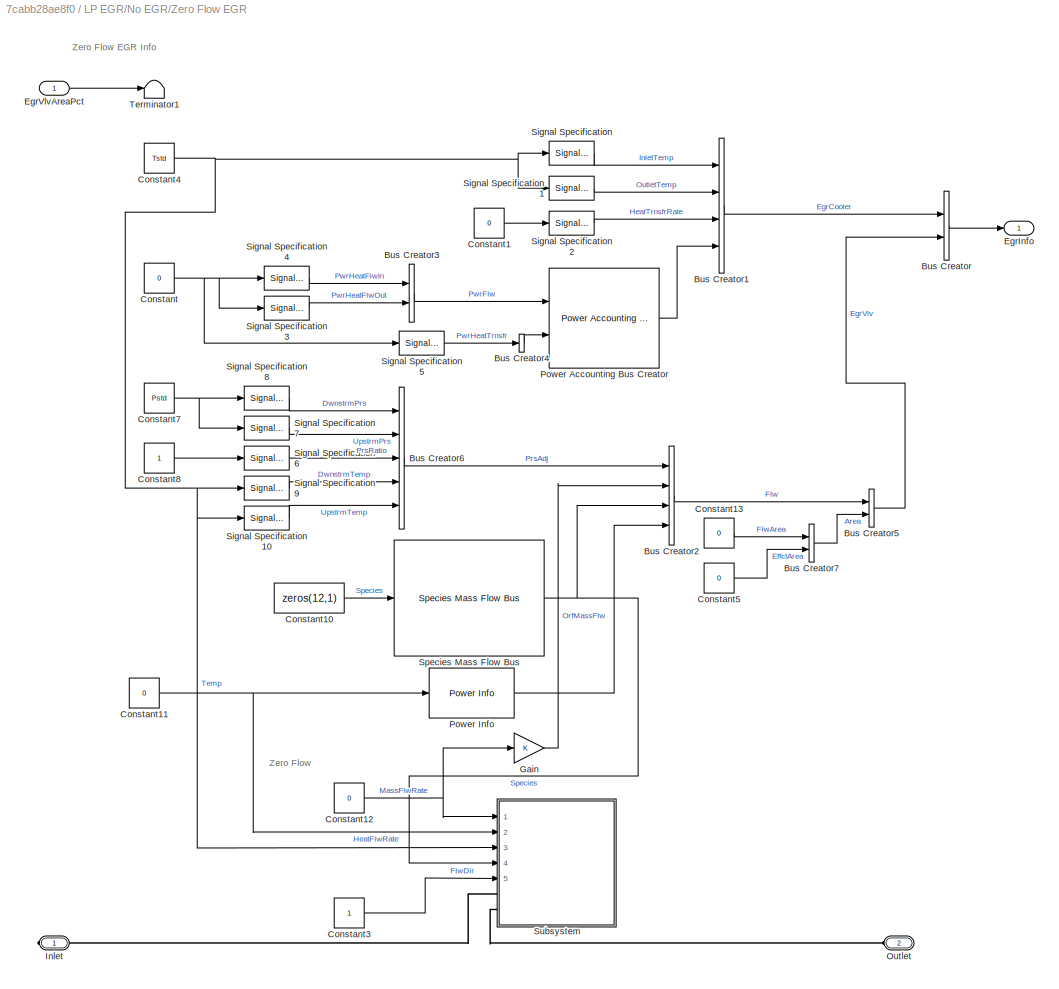
BLOCK [SubSystem] LP EGR/No EGR/Zero Flow EGR
  Ports = [1, 1, 0, 0, 0, 1, 1]
  RequestExecContextInheritance = off
BLOCK [BusCreator] LP EGR/No EGR/Zero Flow EGR/Bus Creator
  DisplayOption = bar
  InheritFromInputs = on
  Inputs = 2
  Ports = [2, 1]
BLOCK [BusCreator] LP EGR/No EGR/Zero Flow EGR/Bus Creator1
  DisplayOption = bar
  InheritFromInputs = on
  Inputs = 4
  Ports = [4, 1]
BLOCK [BusCreator] LP EGR/No EGR/Zero Flow EGR/Bus Creator2
  DisplayOption = bar
  InheritFromInputs = on
  Inputs = 4
  Ports = [4, 1]
BLOCK [BusCreator] LP EGR/No EGR/Zero Flow EGR/Bus Creator3
  DisplayOption = bar
  InheritFromInputs = on
  Inputs = 2
  Ports = [2, 1]
BLOCK [BusCreator] LP EGR/No EGR/Zero Flow EGR/Bus Creator4
  DisplayOption = bar
  InheritFromInputs = on
  Inputs = 1
  Ports = [1, 1]
BLOCK [BusCreator] LP EGR/No EGR/Zero Flow EGR/Bus Creator5
  DisplayOption = bar
  InheritFromInputs = on
  Inputs = 2
  Ports = [2, 1]
BLOCK [BusCreator] LP EGR/No EGR/Zero Flow EGR/Bus Creator6
  DisplayOption = bar
  InheritFromInputs = on
  Inputs = 5
  Ports = [5, 1]
BLOCK [BusCreator] LP EGR/No EGR/Zero Flow EGR/Bus Creator7
  DisplayOption = bar
  InheritFromInputs = on
  Inputs = 2
  Ports = [2, 1]
BLOCK [Constant] LP EGR/No EGR/Zero Flow EGR/Constant
  Value = 0
BLOCK [Constant] LP EGR/No EGR/Zero Flow EGR/Constant1
  Value = 0
BLOCK [Constant] LP EGR/No EGR/Zero Flow EGR/Constant10
  Value = zeros(12,1)
BLOCK [Constant] LP EGR/No EGR/Zero Flow EGR/Constant11
  Value = 0
BLOCK [Constant] LP EGR/No EGR/Zero Flow EGR/Constant12
  Value = 0
BLOCK [Constant] LP EGR/No EGR/Zero Flow EGR/Constant13
  Value = 0
BLOCK [Constant] LP EGR/No EGR/Zero Flow EGR/Constant3
BLOCK [Constant] LP EGR/No EGR/Zero Flow EGR/Constant4
  Value = Tstd
BLOCK [Constant] LP EGR/No EGR/Zero Flow EGR/Constant5
  Value = 0
BLOCK [Constant] LP EGR/No EGR/Zero Flow EGR/Constant7
  Value = Pstd
BLOCK [Constant] LP EGR/No EGR/Zero Flow EGR/Constant8
BLOCK [Outport] LP EGR/No EGR/Zero Flow EGR/EgrInfo
  VectorParamsAs1DForOutWhenUnconnected = off
BLOCK [Inport] LP EGR/No EGR/Zero Flow EGR/EgrVlvAreaPct
BLOCK [Gain] LP EGR/No EGR/Zero Flow EGR/Gain
BLOCK [PMIOPort] LP EGR/No EGR/Zero Flow EGR/Inlet
  Side = Right
BLOCK [PMIOPort] LP EGR/No EGR/Zero Flow EGR/Outlet
  Port = 2
  Side = Left
BLOCK [Reference] LP EGR/No EGR/Zero Flow EGR/Power Accounting Bus Creator  REF=autolibpowerinfoutils/Power Accounting Bus Creator
  Ports = [2, 1]
  SourceBlock = autolibpowerinfoutils/Power Accounting Bus Creator
  SourceProductBaseCode = PW,DR,MT,UV,VE
  SourceType = Power Accounting Bus Creator
BLOCK [Reference] LP EGR/No EGR/Zero Flow EGR/Power Info  REF=autolibfundflwcommon/Compressible Flow Orifice/Power Info
  Ports = [1, 1]
  SourceBlock = autolibfundflwcommon/Compressible Flow Orifice/Power Info
  SourceProductBaseCode = PW
  SourceType = SubSystem
BLOCK [SignalSpecification] LP EGR/No EGR/Zero Flow EGR/Signal Specification
  Unit = K
BLOCK [SignalSpecification] LP EGR/No EGR/Zero Flow EGR/Signal Specification1
  Unit = K
BLOCK [SignalSpecification] LP EGR/No EGR/Zero Flow EGR/Signal Specification10
  Unit = K
BLOCK [SignalSpecification] LP EGR/No EGR/Zero Flow EGR/Signal Specification2
  Unit = J/s
BLOCK [SignalSpecification] LP EGR/No EGR/Zero Flow EGR/Signal Specification3
  Unit = W
BLOCK [SignalSpecification] LP EGR/No EGR/Zero Flow EGR/Signal Specification4
  Unit = W
BLOCK [SignalSpecification] LP EGR/No EGR/Zero Flow EGR/Signal Specification5
  Unit = W
BLOCK [SignalSpecification] LP EGR/No EGR/Zero Flow EGR/Signal Specification6
  Unit = 1
BLOCK [SignalSpecification] LP EGR/No EGR/Zero Flow EGR/Signal Specification7
  Unit = Pa
BLOCK [SignalSpecification] LP EGR/No EGR/Zero Flow EGR/Signal Specification8
  Unit = Pa
BLOCK [SignalSpecification] LP EGR/No EGR/Zero Flow EGR/Signal Specification9
  Unit = K
BLOCK [Reference] LP EGR/No EGR/Zero Flow EGR/Species Mass Flow Bus  REF=autolibfundflwcommon/Species Mass Flow
Bus
  Ports = [1, 1]
  SourceBlock = autolibfundflwcommon/Species Mass Flow\nBus
  SourceProductBaseCode = PW
  SourceType = SubSystem
BLOCK [SubSystem] LP EGR/No EGR/Zero Flow EGR/Subsystem
  Ports = [5, 0, 0, 0, 0, 2]
  RequestExecContextInheritance = off
BLOCK [BusCreator] LP EGR/No EGR/Zero Flow EGR/Subsystem/Bus Creator2
  DisplayOption = bar
  InheritFromInputs = on
  Inputs = 5
  Ports = [5, 1]
BLOCK [BusCreator] LP EGR/No EGR/Zero Flow EGR/Subsystem/Bus Creator3
  DisplayOption = bar
  InheritFromInputs = on
  Inputs = 5
  Ports = [5, 1]
BLOCK [BusSelector] LP EGR/No EGR/Zero Flow EGR/Subsystem/Bus Selector
  OutputSignals = Prs
  Ports = [1, 1]
BLOCK [BusSelector] LP EGR/No EGR/Zero Flow EGR/Subsystem/Bus Selector1
  OutputSignals = Prs
  Ports = [1, 1]
BLOCK [Inport] LP EGR/No EGR/Zero Flow EGR/Subsystem/FlwDir
  Port = 5
BLOCK [Gain] LP EGR/No EGR/Zero Flow EGR/Subsystem/Gain
  Gain = -1
BLOCK [Gain] LP EGR/No EGR/Zero Flow EGR/Subsystem/Gain1
  Gain = -1
BLOCK [Gain] LP EGR/No EGR/Zero Flow EGR/Subsystem/Gain2
  Gain = -1
BLOCK [Inport] LP EGR/No EGR/Zero Flow EGR/Subsystem/HeatFlw
  Port = 2
BLOCK [PMIOPort] LP EGR/No EGR/Zero Flow EGR/Subsystem/Inlet
  Side = Left
BLOCK [Inport] LP EGR/No EGR/Zero Flow EGR/Subsystem/MassFlw
BLOCK [PMIOPort] LP EGR/No EGR/Zero Flow EGR/Subsystem/Outlet
  Port = 2
  Side = Left
BLOCK [Terminator] LP EGR/No EGR/Zero Flow EGR/Subsystem/Terminator
BLOCK [Terminator] LP EGR/No EGR/Zero Flow EGR/Subsystem/Terminator1
BLOCK [TwoWayConnection] LP EGR/No EGR/Zero Flow EGR/Subsystem/Two-Way Connection1
  Ports = [1, 1, 0, 0, 0, 0, 1]
BLOCK [TwoWayConnection] LP EGR/No EGR/Zero Flow EGR/Subsystem/Two-Way Connection2
  Ports = [1, 1, 0, 0, 0, 0, 1]
BLOCK [Inport] LP EGR/No EGR/Zero Flow EGR/Subsystem/UpstrmMassFrac
  Port = 4
BLOCK [Inport] LP EGR/No EGR/Zero Flow EGR/Subsystem/UpstrmTemp
  Port = 3
BLOCK [Terminator] LP EGR/No EGR/Zero Flow EGR/Terminator1
BLOCK [PMIOPort] LP EGR/TurbOutVol
  Port = 2
  Side = Left
BLOCK [Outport] Map
  Port = 4
  VectorParamsAs1DForOutWhenUnconnected = off
BLOCK [Outport] Mat
  Port = 5
  VectorParamsAs1DForOutWhenUnconnected = off
BLOCK [Outport] NormAirChrg
  Port = 3
  VectorParamsAs1DForOutWhenUnconnected = off
BLOCK [Reference] SI Core Engine  REF=autolibcoreeng/SI Core Engine
  Ports = [7, 2, 0, 0, 0, 1, 1]
  SourceBlock = autolibcoreeng/SI Core Engine
  SourceProductBaseCode = PW
  SourceType = SI Core Engine
BLOCK [Inport] SpkAdv
  Port = 4
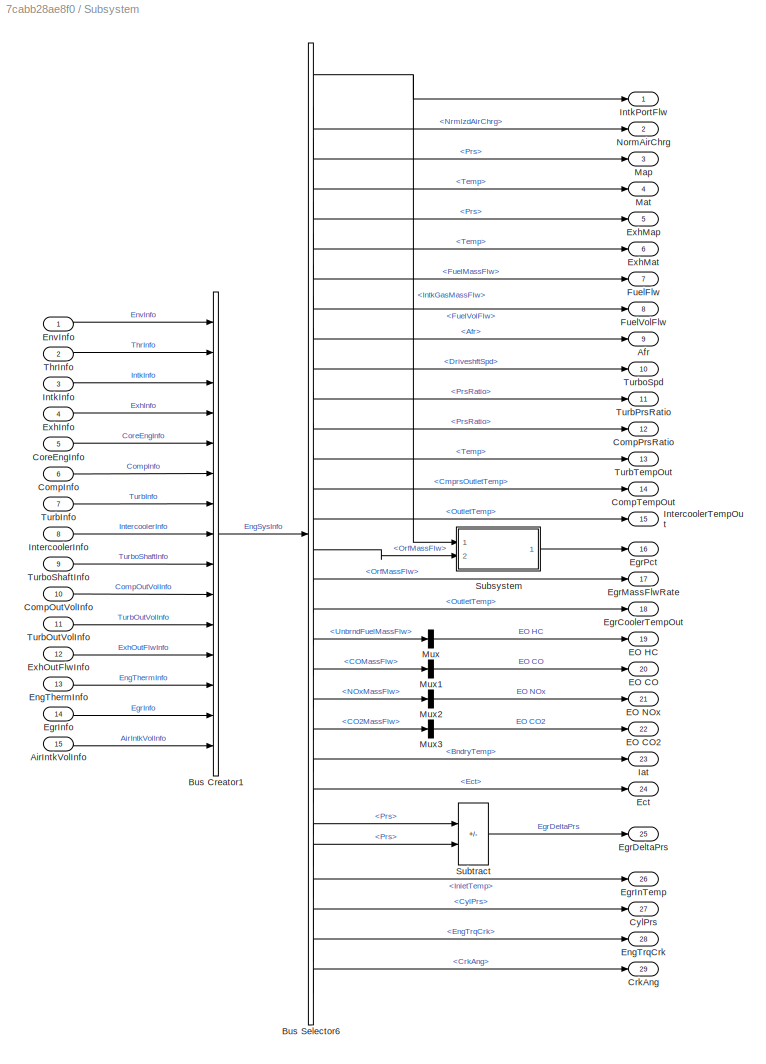
BLOCK [SubSystem] Subsystem
  Ports = [15, 29]
  RequestExecContextInheritance = off
BLOCK [Outport] Subsystem/Afr
  Port = 9
  Unit = 1
  VectorParamsAs1DForOutWhenUnconnected = off
BLOCK [Inport] Subsystem/AirIntkVolInfo
  Port = 15
BLOCK [BusCreator] Subsystem/Bus Creator1
  DisplayOption = bar
  InheritFromInputs = on
  Inputs = 15
  Ports = [15, 1]
BLOCK [BusSelector] Subsystem/Bus Selector6
  OutputSignals = CoreEngInfo.IntkGasMassFlw,CoreEngInfo.NrmlzdAirChrg,IntkInfo.Vol.Prs,IntkInfo.Vol.Temp,ExhInfo.Vol.Prs,ExhInfo.Vol.Temp,CoreEngInfo.FuelMassFlw,CoreEngInfo.FuelVolFlw,CoreEngInfo.Afr,TurboShaftInfo.DriveshftSpd,TurbInfo.PrsRatio,CompInfo.PrsRatio,TurbOutVolInfo.Vol.Temp,CompInfo.CmprsOutletTemp,IntercoolerInfo.OutletTemp,EgrInfo.EgrVlv.Flw.OrfMassFlw,EgrInfo.EgrVlv.Flw.OrfMassFlw,IntercoolerInfo....<+331ch>
  Ports = [1, 30]
BLOCK [Inport] Subsystem/CompInfo
  Port = 6
BLOCK [Inport] Subsystem/CompOutVolInfo
  Port = 10
BLOCK [Outport] Subsystem/CompPrsRatio
  Port = 12
  VectorParamsAs1DForOutWhenUnconnected = off
BLOCK [Outport] Subsystem/CompTempOut
  Port = 14
  VectorParamsAs1DForOutWhenUnconnected = off
BLOCK [Inport] Subsystem/CoreEngInfo
  Port = 5
BLOCK [Outport] Subsystem/CrkAng
  Port = 29
  VectorParamsAs1DForOutWhenUnconnected = off
BLOCK [Outport] Subsystem/CylPrs
  Port = 27
  VectorParamsAs1DForOutWhenUnconnected = off
BLOCK [Outport] Subsystem/EO CO
  Port = 20
  VectorParamsAs1DForOutWhenUnconnected = off
BLOCK [Outport] Subsystem/EO CO2
  Port = 22
  VectorParamsAs1DForOutWhenUnconnected = off
BLOCK [Outport] Subsystem/EO HC
  Port = 19
  VectorParamsAs1DForOutWhenUnconnected = off
BLOCK [Outport] Subsystem/EO NOx
  Port = 21
  VectorParamsAs1DForOutWhenUnconnected = off
BLOCK [Outport] Subsystem/Ect
  Port = 24
  VectorParamsAs1DForOutWhenUnconnected = off
BLOCK [Outport] Subsystem/EgrCoolerTempOut
  Port = 18
  VectorParamsAs1DForOutWhenUnconnected = off
BLOCK [Outport] Subsystem/EgrDeltaPrs
  Port = 25
  Unit = Pa
  VectorParamsAs1DForOutWhenUnconnected = off
BLOCK [Outport] Subsystem/EgrInTemp
  Port = 26
  Unit = K
  VectorParamsAs1DForOutWhenUnconnected = off
BLOCK [Inport] Subsystem/EgrInfo
  Port = 14
BLOCK [Outport] Subsystem/EgrMassFlwRate
  Port = 17
  VectorParamsAs1DForOutWhenUnconnected = off
BLOCK [Outport] Subsystem/EgrPct
  Port = 16
  Unit = %
  VectorParamsAs1DForOutWhenUnconnected = off
BLOCK [Inport] Subsystem/EngThermInfo
  Port = 13
BLOCK [Outport] Subsystem/EngTrqCrk
  Port = 28
  VectorParamsAs1DForOutWhenUnconnected = off
BLOCK [Inport] Subsystem/EnvInfo
BLOCK [Inport] Subsystem/ExhInfo
  Port = 4
BLOCK [Outport] Subsystem/ExhMap
  Port = 5
  VectorParamsAs1DForOutWhenUnconnected = off
BLOCK [Outport] Subsystem/ExhMat
  Port = 6
  VectorParamsAs1DForOutWhenUnconnected = off
BLOCK [Inport] Subsystem/ExhOutFlwInfo
  Port = 12
BLOCK [Outport] Subsystem/FuelFlw
  Port = 7
  VectorParamsAs1DForOutWhenUnconnected = off
BLOCK [Outport] Subsystem/FuelVolFlw
  Port = 8
  VectorParamsAs1DForOutWhenUnconnected = off
BLOCK [Outport] Subsystem/Iat
  Port = 23
  VectorParamsAs1DForOutWhenUnconnected = off
BLOCK [Inport] Subsystem/IntercoolerInfo
  Port = 8
BLOCK [Outport] Subsystem/IntercoolerTempOut
  Port = 15
  VectorParamsAs1DForOutWhenUnconnected = off
BLOCK [Inport] Subsystem/IntkInfo
  Port = 3
BLOCK [Outport] Subsystem/IntkPortFlw
  VectorParamsAs1DForOutWhenUnconnected = off
BLOCK [Outport] Subsystem/Map
  Port = 3
  VectorParamsAs1DForOutWhenUnconnected = off
BLOCK [Outport] Subsystem/Mat
  Port = 4
  VectorParamsAs1DForOutWhenUnconnected = off
BLOCK [Mux] Subsystem/Mux
  DisplayOption = bar
  Inputs = 1
  Ports = [1, 1]
BLOCK [Mux] Subsystem/Mux1
  DisplayOption = bar
  Inputs = 1
  Ports = [1, 1]
BLOCK [Mux] Subsystem/Mux2
  DisplayOption = bar
  Inputs = 1
  Ports = [1, 1]
BLOCK [Mux] Subsystem/Mux3
  DisplayOption = bar
  Inputs = 1
  Ports = [1, 1]
BLOCK [Outport] Subsystem/NormAirChrg
  Port = 2
  Unit = 1
  VectorParamsAs1DForOutWhenUnconnected = off
BLOCK [SubSystem] Subsystem/Subsystem
  Ports = [2, 1]
  RequestExecContextInheritance = off
BLOCK [Constant] Subsystem/Subsystem/Constant
  Value = 0
BLOCK [Product] Subsystem/Subsystem/Divide
  Inputs = /*
  Ports = [2, 1]
BLOCK [Inport] Subsystem/Subsystem/EgrFlw
  Port = 2
BLOCK [Outport] Subsystem/Subsystem/EgrPct
  VectorParamsAs1DForOutWhenUnconnected = off
BLOCK [Gain] Subsystem/Subsystem/Gain
  Gain = 100
BLOCK [Inport] Subsystem/Subsystem/IntkFlw
BLOCK [Saturate] Subsystem/Subsystem/Saturation
  LowerLimit = 1e-6
  UpperLimit = 1e6
  ZeroCross = off
BLOCK [Saturate] Subsystem/Subsystem/Saturation1
  LowerLimit = 0
  UpperLimit = 100
  ZeroCross = off
BLOCK [Switch] Subsystem/Subsystem/Switch
  Criteria = u2 > Threshold
  InputSameDT = off
  SaturateOnIntegerOverflow = off
  Threshold = 1e-6
  ZeroCross = off
BLOCK [Sum] Subsystem/Subtract
  IconShape = rectangular
  Inputs = +-
  Ports = [2, 1]
BLOCK [Inport] Subsystem/ThrInfo
  Port = 2
BLOCK [Inport] Subsystem/TurbInfo
  Port = 7
BLOCK [Inport] Subsystem/TurbOutVolInfo
  Port = 11
BLOCK [Outport] Subsystem/TurbPrsRatio
  Port = 11
  VectorParamsAs1DForOutWhenUnconnected = off
BLOCK [Outport] Subsystem/TurbTempOut
  Port = 13
  VectorParamsAs1DForOutWhenUnconnected = off
BLOCK [Inport] Subsystem/TurboShaftInfo
  Port = 9
BLOCK [Outport] Subsystem/TurboSpd
  Port = 10
  VectorParamsAs1DForOutWhenUnconnected = off
BLOCK [Terminator] Terminator1
BLOCK [Terminator] Terminator10
BLOCK [Terminator] Terminator2
BLOCK [Terminator] Terminator3
BLOCK [Terminator] Terminator4
BLOCK [Terminator] Terminator5
BLOCK [Terminator] Terminator6
BLOCK [Terminator] Terminator7
BLOCK [Terminator] Terminator8
BLOCK [Terminator] Terminator9
  NameLocation = left
BLOCK [Inport] ThrPosPct
BLOCK [Reference] Throttle Body R  REF=autolibfundflw/Flow Restriction
  Ports = [1, 1, 0, 0, 0, 1, 1]
  SourceBlock = autolibfundflw/Flow Restriction
  SourceProductBaseCode = PW
  SourceType = Flow Restriction
BLOCK [Outport] TurbPrsRatio
  Port = 12
  VectorParamsAs1DForOutWhenUnconnected = off
BLOCK [Outport] TurbTempOut
  Port = 14
  VectorParamsAs1DForOutWhenUnconnected = off
BLOCK [Reference] Turbine L  REF=autolibboost/Turbine
  NameLocation = left
  Ports = [1, 1, 0, 0, 0, 2, 1]
  SourceBlock = autolibboost/Turbine
  SourceProductBaseCode = PW
  SourceType = Turbine
BLOCK [Reference] Turbine R  REF=autolibboost/Turbine
  NameLocation = right
  Ports = [1, 1, 0, 0, 0, 2, 1]
  SourceBlock = autolibboost/Turbine
  SourceProductBaseCode = PW
  SourceType = Turbine
BLOCK [Outport] TurboSpd
  Port = 11
  VectorParamsAs1DForOutWhenUnconnected = off
BLOCK [Inport] UndHdFlwVel
  Port = 8
BLOCK [Inport] UndHdTemp
  Port = 9
BLOCK [Inport] WgAreaPct
  Port = 2
ANNOTATION (root): <copyright redacted>
ANNOTATION (root): EngSysInfo
ANNOTATION LP EGR/No EGR/Zero Flow EGR: Zero Flow
ANNOTATION LP EGR/No EGR/Zero Flow EGR: Zero Flow EGR Info
LINE Air Filter:1 -> Terminator5:1
LINE Air Intake System:1 -> Goto18:1
LINE AmbPrs:1 -> Goto:1
LINE AmbTemp:1 -> Goto1:1
LINE Boost Drive Shaft L:1 -> Terminator10:1
LINE Boost Drive Shaft R:1 -> Goto11:1
LINE Comp Y Out:1 -> Terminator4:1
LINE Compressor L:1 -> Terminator9:1
LINE Compressor Output Volume:1 -> Goto2:1
LINE Compressor R:1 -> Goto5:1
LINE Compressor Y Volume:1 -> Terminator3:1
LINE EgrVlvAreaPct:1 -> LP EGR:1
LINE EngSpd:1 -> SI Core Engine:6
LINE Engine Coolant Temperature/Add:1 -> Engine Coolant Temperature/Saturation:1
LINE Engine Coolant Temperature/Bus Creator:1 -> Engine Coolant Temperature/EngThermInfo:1
LINE Engine Coolant Temperature/Bus Selector1:1 -> Engine Coolant Temperature/Gain1:1
LINE Engine Coolant Temperature/Bus Selector:1 -> Engine Coolant Temperature/Gain:1
LINE Engine Coolant Temperature/Bus Selector:2 -> Engine Coolant Temperature/Product1:2
LINE Engine Coolant Temperature/Bus Selector:3 -> Engine Coolant Temperature/LHV:1
LINE Engine Coolant Temperature/Bus Selector:4 -> Engine Coolant Temperature/Product:1
LINE Engine Coolant Temperature/Bus Selector:5 -> Engine Coolant Temperature/Unit Conversion:1
LINE Engine Coolant Temperature/Cooling Time Constant:1 -> Engine Coolant Temperature/Divide1:3
LINE Engine Coolant Temperature/CoreEngInfo:1 -> Engine Coolant Temperature/Bus Selector:1
NET Engine Coolant Temperature/Divide1:1 -> Engine Coolant Temperature/Max:1, Engine Coolant Temperature/Mux:1
LINE Engine Coolant Temperature/Divide:1 -> Engine Coolant Temperature/Integrator:1
LINE Engine Coolant Temperature/Gain1:1 -> Engine Coolant Temperature/Subtract2:1
LINE Engine Coolant Temperature/Gain:1 -> Engine Coolant Temperature/Subtract2:2
LINE Engine Coolant Temperature/Heat Capacity1:1 -> Engine Coolant Temperature/Divide1:2
LINE Engine Coolant Temperature/Heat Capacity:1 -> Engine Coolant Temperature/Divide:2
LINE Engine Coolant Temperature/Integrator:1 -> Engine Coolant Temperature/Signal Specification1:1
LINE Engine Coolant Temperature/IntkInfo:1 -> Engine Coolant Temperature/Bus Selector1:1
LINE Engine Coolant Temperature/LHV:1 -> Engine Coolant Temperature/Add:2
LINE Engine Coolant Temperature/Lookup Table Dynamic:1 -> Engine Coolant Temperature/Subtract1:2
LINE Engine Coolant Temperature/Max:1 -> Engine Coolant Temperature/Mux:2
LINE Engine Coolant Temperature/Maximum Coolant Temperature:1 -> Engine Coolant Temperature/Mux1:2
LINE Engine Coolant Temperature/Mux1:1 -> Engine Coolant Temperature/Lookup Table Dynamic:2
LINE Engine Coolant Temperature/Mux:1 -> Engine Coolant Temperature/Lookup Table Dynamic:3
LINE Engine Coolant Temperature/Product1:1 -> Engine Coolant Temperature/Add:1
LINE Engine Coolant Temperature/Product:1 -> Engine Coolant Temperature/Add:3
NET Engine Coolant Temperature/Saturation:1 -> Engine Coolant Temperature/Max:2, Engine Coolant Temperature/Subtract1:1
NET Engine Coolant Temperature/Signal Specification1:1 -> Engine Coolant Temperature/Bus Creator:1, Engine Coolant Temperature/Ect:1, Engine Coolant Temperature/Lookup Table Dynamic:1, Engine Coolant Temperature/Subtract:2
LINE Engine Coolant Temperature/Signal Specification:1 -> Engine Coolant Temperature/Product:2
LINE Engine Coolant Temperature/Start Cooling Temperature:1 -> Engine Coolant Temperature/Mux1:1
LINE Engine Coolant Temperature/Subtract1:1 -> Engine Coolant Temperature/Divide:1
LINE Engine Coolant Temperature/Subtract2:1 -> Engine Coolant Temperature/Product1:1
LINE Engine Coolant Temperature/Subtract:1 -> Engine Coolant Temperature/Divide1:1
LINE Engine Coolant Temperature/UndHdFlwVel:1 -> Engine Coolant Temperature/Terminator:1
LINE Engine Coolant Temperature/UndHdTemp:1 -> Engine Coolant Temperature/Subtract:1
LINE Engine Coolant Temperature/Unit Conversion:1 -> Engine Coolant Temperature/Signal Specification:1
LINE Engine Coolant Temperature:1 -> Goto16:1
LINE Engine Coolant Temperature:2 -> SI Core Engine:7
LINE Environment Exhaust L:1 -> Terminator2:1
LINE Environment Exhaust R:1 -> Terminator1:1
LINE Environment Intake:1 -> Goto3:1
LINE ExhCamPhase:1 -> SI Core Engine:4
LINE Exhaust Back Pressure L:1 -> Terminator6:1
LINE Exhaust Back Pressure R:1 -> Goto13:1
LINE Exhaust Manifold:1 -> Goto10:1
LINE Exhaust System Volume L:1 -> Terminator7:1
LINE Exhaust System Volume R:1 -> Goto4:1
LINE InjPw:1 -> SI Core Engine:1
LINE Intake Manifold:1 -> Goto8:1
LINE Intercooler R:1 -> Goto6:1
LINE IntkCamPhase:1 -> SI Core Engine:3
LINE IntkManInfoFrom10:1 -> Subsystem:9
LINE IntkManInfoFrom11:1 -> Environment Exhaust R:1
LINE IntkManInfoFrom12:1 -> Environment Exhaust R:2
LINE IntkManInfoFrom13:1 -> Intercooler R:1
LINE IntkManInfoFrom14:1 -> Subsystem:11
LINE IntkManInfoFrom15:1 -> Subsystem:10
LINE IntkManInfoFrom16:1 -> Environment Intake:1
LINE IntkManInfoFrom17:1 -> Environment Intake:2
LINE IntkManInfoFrom18:1 -> Subsystem:12
LINE IntkManInfoFrom19:1 -> Engine Coolant Temperature:2
LINE IntkManInfoFrom1:1 -> Subsystem:1
LINE IntkManInfoFrom20:1 -> Engine Coolant Temperature:1
LINE IntkManInfoFrom21:1 -> Engine Coolant Temperature:3
LINE IntkManInfoFrom22:1 -> Engine Coolant Temperature:4
LINE IntkManInfoFrom23:1 -> Intake Manifold:2
LINE IntkManInfoFrom24:1 -> Intake Manifold:1
LINE IntkManInfoFrom25:1 -> Subsystem:13
LINE IntkManInfoFrom26:1 -> Subsystem:14
LINE IntkManInfoFrom27:1 -> Subsystem:15
LINE IntkManInfoFrom29:1 -> Environment Exhaust L:1
LINE IntkManInfoFrom2:1 -> Subsystem:6
LINE IntkManInfoFrom30:1 -> Environment Exhaust L:2
LINE IntkManInfoFrom32:1 -> Turbine L:1
LINE IntkManInfoFrom3:1 -> Subsystem:2
LINE IntkManInfoFrom4:1 -> Subsystem:3
LINE IntkManInfoFrom5:1 -> Subsystem:4
LINE IntkManInfoFrom6:1 -> Subsystem:5
LINE IntkManInfoFrom7:1 -> Subsystem:7
LINE IntkManInfoFrom8:1 -> Subsystem:8
LINE IntkManInfoFrom9:1 -> SI Core Engine:5
LINE LP EGR/LP EGR/Bus Creator:1 -> LP EGR/LP EGR/EgrInfo:1
LINE LP EGR/LP EGR/EGR Cooler:1 -> LP EGR/LP EGR/Bus Creator:1
LINE LP EGR/LP EGR/EGR Valve:1 -> LP EGR/LP EGR/Bus Creator:2
LINE LP EGR/LP EGR/EgrVlvAreaPct:1 -> LP EGR/LP EGR/Saturation:1
LINE LP EGR/LP EGR/Open Valve Area:1 -> LP EGR/LP EGR/EGR Valve:1
LINE LP EGR/LP EGR/Saturation:1 -> LP EGR/LP EGR/Open Valve Area:1
LINE LP EGR/No EGR/EgrVlvAreaPct:1 -> LP EGR/No EGR/Zero Flow EGR:1
LINE LP EGR/No EGR/Zero Flow EGR/Bus Creator1:1 -> LP EGR/No EGR/Zero Flow EGR/Bus Creator:1
LINE LP EGR/No EGR/Zero Flow EGR/Bus Creator2:1 -> LP EGR/No EGR/Zero Flow EGR/Bus Creator5:1
LINE LP EGR/No EGR/Zero Flow EGR/Bus Creator3:1 -> LP EGR/No EGR/Zero Flow EGR/Power Accounting Bus Creator:1
LINE LP EGR/No EGR/Zero Flow EGR/Bus Creator4:1 -> LP EGR/No EGR/Zero Flow EGR/Power Accounting Bus Creator:2
LINE LP EGR/No EGR/Zero Flow EGR/Bus Creator5:1 -> LP EGR/No EGR/Zero Flow EGR/Bus Creator:2
LINE LP EGR/No EGR/Zero Flow EGR/Bus Creator6:1 -> LP EGR/No EGR/Zero Flow EGR/Bus Creator2:1
LINE LP EGR/No EGR/Zero Flow EGR/Bus Creator7:1 -> LP EGR/No EGR/Zero Flow EGR/Bus Creator5:2
LINE LP EGR/No EGR/Zero Flow EGR/Bus Creator:1 -> LP EGR/No EGR/Zero Flow EGR/EgrInfo:1
LINE LP EGR/No EGR/Zero Flow EGR/Constant10:1 -> LP EGR/No EGR/Zero Flow EGR/Species Mass Flow Bus:1
NET LP EGR/No EGR/Zero Flow EGR/Constant11:1 -> LP EGR/No EGR/Zero Flow EGR/Power Info:1, LP EGR/No EGR/Zero Flow EGR/Subsystem:2
NET LP EGR/No EGR/Zero Flow EGR/Constant12:1 -> LP EGR/No EGR/Zero Flow EGR/Gain:1, LP EGR/No EGR/Zero Flow EGR/Subsystem:1
LINE LP EGR/No EGR/Zero Flow EGR/Constant13:1 -> LP EGR/No EGR/Zero Flow EGR/Bus Creator7:1
LINE LP EGR/No EGR/Zero Flow EGR/Constant1:1 -> LP EGR/No EGR/Zero Flow EGR/Signal Specification2:1
LINE LP EGR/No EGR/Zero Flow EGR/Constant3:1 -> LP EGR/No EGR/Zero Flow EGR/Subsystem:5
NET LP EGR/No EGR/Zero Flow EGR/Constant4:1 -> LP EGR/No EGR/Zero Flow EGR/Signal Specification10:1, LP EGR/No EGR/Zero Flow EGR/Signal Specification1:1, LP EGR/No EGR/Zero Flow EGR/Signal Specification9:1, LP EGR/No EGR/Zero Flow EGR/Signal Specification:1, LP EGR/No EGR/Zero Flow EGR/Subsystem:3
LINE LP EGR/No EGR/Zero Flow EGR/Constant5:1 -> LP EGR/No EGR/Zero Flow EGR/Bus Creator7:2
NET LP EGR/No EGR/Zero Flow EGR/Constant7:1 -> LP EGR/No EGR/Zero Flow EGR/Signal Specification7:1, LP EGR/No EGR/Zero Flow EGR/Signal Specification8:1
LINE LP EGR/No EGR/Zero Flow EGR/Constant8:1 -> LP EGR/No EGR/Zero Flow EGR/Signal Specification6:1
NET LP EGR/No EGR/Zero Flow EGR/Constant:1 -> LP EGR/No EGR/Zero Flow EGR/Signal Specification3:1, LP EGR/No EGR/Zero Flow EGR/Signal Specification4:1, LP EGR/No EGR/Zero Flow EGR/Signal Specification5:1
LINE LP EGR/No EGR/Zero Flow EGR/EgrVlvAreaPct:1 -> LP EGR/No EGR/Zero Flow EGR/Terminator1:1
LINE LP EGR/No EGR/Zero Flow EGR/Gain:1 -> LP EGR/No EGR/Zero Flow EGR/Bus Creator2:2
LINE LP EGR/No EGR/Zero Flow EGR/Power Accounting Bus Creator:1 -> LP EGR/No EGR/Zero Flow EGR/Bus Creator1:4
LINE LP EGR/No EGR/Zero Flow EGR/Power Info:1 -> LP EGR/No EGR/Zero Flow EGR/Bus Creator2:4
LINE LP EGR/No EGR/Zero Flow EGR/Signal Specification10:1 -> LP EGR/No EGR/Zero Flow EGR/Bus Creator6:5
LINE LP EGR/No EGR/Zero Flow EGR/Signal Specification1:1 -> LP EGR/No EGR/Zero Flow EGR/Bus Creator1:2
LINE LP EGR/No EGR/Zero Flow EGR/Signal Specification2:1 -> LP EGR/No EGR/Zero Flow EGR/Bus Creator1:3
LINE LP EGR/No EGR/Zero Flow EGR/Signal Specification3:1 -> LP EGR/No EGR/Zero Flow EGR/Bus Creator3:2
LINE LP EGR/No EGR/Zero Flow EGR/Signal Specification4:1 -> LP EGR/No EGR/Zero Flow EGR/Bus Creator3:1
LINE LP EGR/No EGR/Zero Flow EGR/Signal Specification5:1 -> LP EGR/No EGR/Zero Flow EGR/Bus Creator4:1
LINE LP EGR/No EGR/Zero Flow EGR/Signal Specification6:1 -> LP EGR/No EGR/Zero Flow EGR/Bus Creator6:3
LINE LP EGR/No EGR/Zero Flow EGR/Signal Specification7:1 -> LP EGR/No EGR/Zero Flow EGR/Bus Creator6:2
LINE LP EGR/No EGR/Zero Flow EGR/Signal Specification8:1 -> LP EGR/No EGR/Zero Flow EGR/Bus Creator6:1
LINE LP EGR/No EGR/Zero Flow EGR/Signal Specification9:1 -> LP EGR/No EGR/Zero Flow EGR/Bus Creator6:4
LINE LP EGR/No EGR/Zero Flow EGR/Signal Specification:1 -> LP EGR/No EGR/Zero Flow EGR/Bus Creator1:1
NET LP EGR/No EGR/Zero Flow EGR/Species Mass Flow Bus:1 -> LP EGR/No EGR/Zero Flow EGR/Bus Creator2:3, LP EGR/No EGR/Zero Flow EGR/Subsystem:4
LINE LP EGR/No EGR/Zero Flow EGR/Subsystem/Bus Creator2:1 -> LP EGR/No EGR/Zero Flow EGR/Subsystem/Two-Way Connection1:1
LINE LP EGR/No EGR/Zero Flow EGR/Subsystem/Bus Creator3:1 -> LP EGR/No EGR/Zero Flow EGR/Subsystem/Two-Way Connection2:1
LINE LP EGR/No EGR/Zero Flow EGR/Subsystem/Bus Selector1:1 -> LP EGR/No EGR/Zero Flow EGR/Subsystem/Terminator1:1
LINE LP EGR/No EGR/Zero Flow EGR/Subsystem/Bus Selector:1 -> LP EGR/No EGR/Zero Flow EGR/Subsystem/Terminator:1
NET LP EGR/No EGR/Zero Flow EGR/Subsystem/FlwDir:1 -> LP EGR/No EGR/Zero Flow EGR/Subsystem/Bus Creator3:5, LP EGR/No EGR/Zero Flow EGR/Subsystem/Gain2:1
LINE LP EGR/No EGR/Zero Flow EGR/Subsystem/Gain1:1 -> LP EGR/No EGR/Zero Flow EGR/Subsystem/Bus Creator2:2
LINE LP EGR/No EGR/Zero Flow EGR/Subsystem/Gain2:1 -> LP EGR/No EGR/Zero Flow EGR/Subsystem/Bus Creator2:5
LINE LP EGR/No EGR/Zero Flow EGR/Subsystem/Gain:1 -> LP EGR/No EGR/Zero Flow EGR/Subsystem/Bus Creator2:1
NET LP EGR/No EGR/Zero Flow EGR/Subsystem/HeatFlw:1 -> LP EGR/No EGR/Zero Flow EGR/Subsystem/Bus Creator3:2, LP EGR/No EGR/Zero Flow EGR/Subsystem/Gain1:1
NET LP EGR/No EGR/Zero Flow EGR/Subsystem/MassFlw:1 -> LP EGR/No EGR/Zero Flow EGR/Subsystem/Bus Creator3:1, LP EGR/No EGR/Zero Flow EGR/Subsystem/Gain:1
LINE LP EGR/No EGR/Zero Flow EGR/Subsystem/Two-Way Connection1:1 -> LP EGR/No EGR/Zero Flow EGR/Subsystem/Bus Selector:1
LINE LP EGR/No EGR/Zero Flow EGR/Subsystem/Two-Way Connection2:1 -> LP EGR/No EGR/Zero Flow EGR/Subsystem/Bus Selector1:1
NET LP EGR/No EGR/Zero Flow EGR/Subsystem/UpstrmMassFrac:1 -> LP EGR/No EGR/Zero Flow EGR/Subsystem/Bus Creator2:4, LP EGR/No EGR/Zero Flow EGR/Subsystem/Bus Creator3:4
NET LP EGR/No EGR/Zero Flow EGR/Subsystem/UpstrmTemp:1 -> LP EGR/No EGR/Zero Flow EGR/Subsystem/Bus Creator2:3, LP EGR/No EGR/Zero Flow EGR/Subsystem/Bus Creator3:3
LINE LP EGR/No EGR/Zero Flow EGR:1 -> LP EGR/No EGR/EgrInfo:1
LINE LP EGR:1 -> Goto17:1
LINE SI Core Engine:1 -> Goto9:1
LINE SI Core Engine:2 -> EngTrq:1
LINE SpkAdv:1 -> SI Core Engine:2
LINE Subsystem/AirIntkVolInfo:1 -> Subsystem/Bus Creator1:15
LINE Subsystem/Bus Creator1:1 -> Subsystem/Bus Selector6:1
NET Subsystem/Bus Selector6:1 -> Subsystem/IntkPortFlw:1, Subsystem/Subsystem:1
LINE Subsystem/Bus Selector6:10 -> Subsystem/TurboSpd:1
LINE Subsystem/Bus Selector6:11 -> Subsystem/TurbPrsRatio:1
LINE Subsystem/Bus Selector6:12 -> Subsystem/CompPrsRatio:1
LINE Subsystem/Bus Selector6:13 -> Subsystem/TurbTempOut:1
LINE Subsystem/Bus Selector6:14 -> Subsystem/CompTempOut:1
LINE Subsystem/Bus Selector6:15 -> Subsystem/IntercoolerTempOut:1
LINE Subsystem/Bus Selector6:16 -> Subsystem/Subsystem:2
LINE Subsystem/Bus Selector6:17 -> Subsystem/EgrMassFlwRate:1
LINE Subsystem/Bus Selector6:18 -> Subsystem/EgrCoolerTempOut:1
LINE Subsystem/Bus Selector6:19 -> Subsystem/Mux:1
LINE Subsystem/Bus Selector6:2 -> Subsystem/NormAirChrg:1
LINE Subsystem/Bus Selector6:20 -> Subsystem/Mux1:1
LINE Subsystem/Bus Selector6:21 -> Subsystem/Mux2:1
LINE Subsystem/Bus Selector6:22 -> Subsystem/Mux3:1
LINE Subsystem/Bus Selector6:23 -> Subsystem/Iat:1
LINE Subsystem/Bus Selector6:24 -> Subsystem/Ect:1
LINE Subsystem/Bus Selector6:25 -> Subsystem/Subtract:1
LINE Subsystem/Bus Selector6:26 -> Subsystem/Subtract:2
LINE Subsystem/Bus Selector6:27 -> Subsystem/EgrInTemp:1
LINE Subsystem/Bus Selector6:28 -> Subsystem/CylPrs:1
LINE Subsystem/Bus Selector6:29 -> Subsystem/EngTrqCrk:1
LINE Subsystem/Bus Selector6:3 -> Subsystem/Map:1
LINE Subsystem/Bus Selector6:30 -> Subsystem/CrkAng:1
LINE Subsystem/Bus Selector6:4 -> Subsystem/Mat:1
LINE Subsystem/Bus Selector6:5 -> Subsystem/ExhMap:1
LINE Subsystem/Bus Selector6:6 -> Subsystem/ExhMat:1
LINE Subsystem/Bus Selector6:7 -> Subsystem/FuelFlw:1
LINE Subsystem/Bus Selector6:8 -> Subsystem/FuelVolFlw:1
LINE Subsystem/Bus Selector6:9 -> Subsystem/Afr:1
LINE Subsystem/CompInfo:1 -> Subsystem/Bus Creator1:6
LINE Subsystem/CompOutVolInfo:1 -> Subsystem/Bus Creator1:10
LINE Subsystem/CoreEngInfo:1 -> Subsystem/Bus Creator1:5
LINE Subsystem/EgrInfo:1 -> Subsystem/Bus Creator1:14
LINE Subsystem/EngThermInfo:1 -> Subsystem/Bus Creator1:13
LINE Subsystem/EnvInfo:1 -> Subsystem/Bus Creator1:1
LINE Subsystem/ExhInfo:1 -> Subsystem/Bus Creator1:4
LINE Subsystem/ExhOutFlwInfo:1 -> Subsystem/Bus Creator1:12
LINE Subsystem/IntercoolerInfo:1 -> Subsystem/Bus Creator1:8
LINE Subsystem/IntkInfo:1 -> Subsystem/Bus Creator1:3
LINE Subsystem/Mux1:1 -> Subsystem/EO CO:1
LINE Subsystem/Mux2:1 -> Subsystem/EO NOx:1
LINE Subsystem/Mux3:1 -> Subsystem/EO CO2:1
LINE Subsystem/Mux:1 -> Subsystem/EO HC:1
LINE Subsystem/Subsystem/Constant:1 -> Subsystem/Subsystem/Switch:3
LINE Subsystem/Subsystem/Divide:1 -> Subsystem/Subsystem/Gain:1
LINE Subsystem/Subsystem/EgrFlw:1 -> Subsystem/Subsystem/Switch:1
LINE Subsystem/Subsystem/Gain:1 -> Subsystem/Subsystem/Saturation1:1
NET Subsystem/Subsystem/IntkFlw:1 -> Subsystem/Subsystem/Saturation:1, Subsystem/Subsystem/Switch:2
LINE Subsystem/Subsystem/Saturation1:1 -> Subsystem/Subsystem/EgrPct:1
LINE Subsystem/Subsystem/Saturation:1 -> Subsystem/Subsystem/Divide:1
LINE Subsystem/Subsystem/Switch:1 -> Subsystem/Subsystem/Divide:2
LINE Subsystem/Subsystem:1 -> Subsystem/EgrPct:1
LINE Subsystem/Subtract:1 -> Subsystem/EgrDeltaPrs:1
LINE Subsystem/ThrInfo:1 -> Subsystem/Bus Creator1:2
LINE Subsystem/TurbInfo:1 -> Subsystem/Bus Creator1:7
LINE Subsystem/TurbOutVolInfo:1 -> Subsystem/Bus Creator1:11
LINE Subsystem/TurboShaftInfo:1 -> Subsystem/Bus Creator1:9
LINE Subsystem:1 -> IntkPortFlw:1
LINE Subsystem:10 -> TurboSpd:1
LINE Subsystem:11 -> TurbPrsRatio:1
LINE Subsystem:12 -> CompPrsRatio:1
LINE Subsystem:13 -> TurbTempOut:1
LINE Subsystem:14 -> CompTempOut:1
LINE Subsystem:15 -> IntercoolerTempOut:1
LINE Subsystem:16 -> EgrPct:1
LINE Subsystem:17 -> EgrMassFlwRate:1
LINE Subsystem:18 -> EgrCoolerTempOut:1
LINE Subsystem:19 -> EO HC:1
LINE Subsystem:2 -> NormAirChrg:1
LINE Subsystem:20 -> EO CO:1
LINE Subsystem:21 -> EO NOx:1
LINE Subsystem:22 -> EO CO2:1
LINE Subsystem:23 -> Iat:1
LINE Subsystem:24 -> Ect:1
LINE Subsystem:25 -> EgrVlvDeltaPrs:1
LINE Subsystem:26 -> EgrVlvInTemp:1
LINE Subsystem:27 -> CylPrs:1
LINE Subsystem:28 -> EngTrqCrk:1
LINE Subsystem:29 -> CrkAng:1
LINE Subsystem:3 -> Map:1
LINE Subsystem:4 -> Mat:1
LINE Subsystem:5 -> ExhMap:1
LINE Subsystem:6 -> ExhMat:1
LINE Subsystem:7 -> FuelFlw:1
LINE Subsystem:8 -> FuelVolFlw:1
LINE Subsystem:9 -> Afr:1
LINE ThrPosPct:1 -> Throttle Body R:1
LINE Throttle Body R:1 -> Goto7:1
LINE Turbine L:1 -> Terminator8:1
LINE Turbine R:1 -> Goto12:1
LINE UndHdFlwVel:1 -> Goto14:1
LINE UndHdTemp:1 -> Goto15:1
NET WgAreaPct:1 -> Goto20:1, Turbine R:1
PLINE Air Filter:LConn1 -- Environment Intake:RConn1
PLINE Air Filter:RConn1 -- Air Intake System:LConn1
PLINE Air Intake System:RConn1 -- LP EGR:RConn1
PLINE Air Intake System:RConn2 -- Compressor R:RConn1
PLINE Air Intake System:RConn3 -- Compressor L:RConn1
PLINE Boost Drive Shaft L:LConn1 -- Compressor L:LConn2
PLINE Boost Drive Shaft L:RConn1 -- Turbine L:RConn1
PLINE Boost Drive Shaft R:LConn1 -- Compressor R:LConn2
PLINE Boost Drive Shaft R:RConn1 -- Turbine R:RConn1
PLINE Comp Y Out:LConn1 -- Compressor Y Volume:RConn1
PLINE Comp Y Out:RConn1 -- Intercooler R:LConn1
PLINE Compressor L:LConn1 -- Compressor Y Volume:LConn1
PLINE Compressor Output Volume:LConn1 -- Intercooler R:RConn1
PLINE Compressor Output Volume:RConn1 -- Throttle Body R:LConn1
PLINE Compressor R:LConn1 -- Compressor Y Volume:LConn2
PLINE Environment Exhaust L:RConn1 -- Exhaust Back Pressure L:RConn1
PLINE Environment Exhaust R:RConn1 -- Exhaust Back Pressure R:RConn1
PLINE Exhaust Back Pressure L:LConn1 -- Exhaust System Volume L:RConn1
PLINE Exhaust Back Pressure R:LConn1 -- Exhaust System Volume R:RConn1
PLINE Exhaust Manifold:LConn1 -- SI Core Engine:RConn1
PLINE Exhaust Manifold:RConn1 -- Turbine R:LConn1
PLINE Exhaust Manifold:RConn2 -- Turbine L:LConn1
PLINE Exhaust System Volume L:LConn1 -- Turbine L:LConn2
PLINE Exhaust System Volume R:LConn1 -- Turbine R:LConn2
PLINE Exhaust System Volume R:LConn2 -- LP EGR:LConn1
PLINE Intake Manifold:LConn1 -- Throttle Body R:RConn1
PLINE Intake Manifold:RConn1 -- SI Core Engine:LConn1
PLINE LP EGR/LP EGR/CompInVol:RConn1 -- LP EGR/LP EGR/EGR Valve:RConn1
PLINE LP EGR/LP EGR/EGR Cooler:LConn1 -- LP EGR/LP EGR/EGR Valve:LConn1
PLINE LP EGR/LP EGR/EGR Cooler:RConn1 -- LP EGR/LP EGR/TurbOutVol:RConn1
PLINE LP EGR/No EGR/CompInVol:RConn1 -- LP EGR/No EGR/Zero Flow EGR:RConn1
PLINE LP EGR/No EGR/TurbOutVol:RConn1 -- LP EGR/No EGR/Zero Flow EGR:LConn1
PLINE LP EGR/No EGR/Zero Flow EGR/Inlet:RConn1 -- LP EGR/No EGR/Zero Flow EGR/Subsystem:LConn1
PLINE LP EGR/No EGR/Zero Flow EGR/Outlet:RConn1 -- LP EGR/No EGR/Zero Flow EGR/Subsystem:LConn2
PLINE LP EGR/No EGR/Zero Flow EGR/Subsystem/Inlet:RConn1 -- LP EGR/No EGR/Zero Flow EGR/Subsystem/Two-Way Connection1:RConn1
PLINE LP EGR/No EGR/Zero Flow EGR/Subsystem/Outlet:RConn1 -- LP EGR/No EGR/Zero Flow EGR/Subsystem/Two-Way Connection2:RConn1
note: NET lines group one-source signal fan-out (src -> all destinations, sorted); 1:1 wires keep LINE
